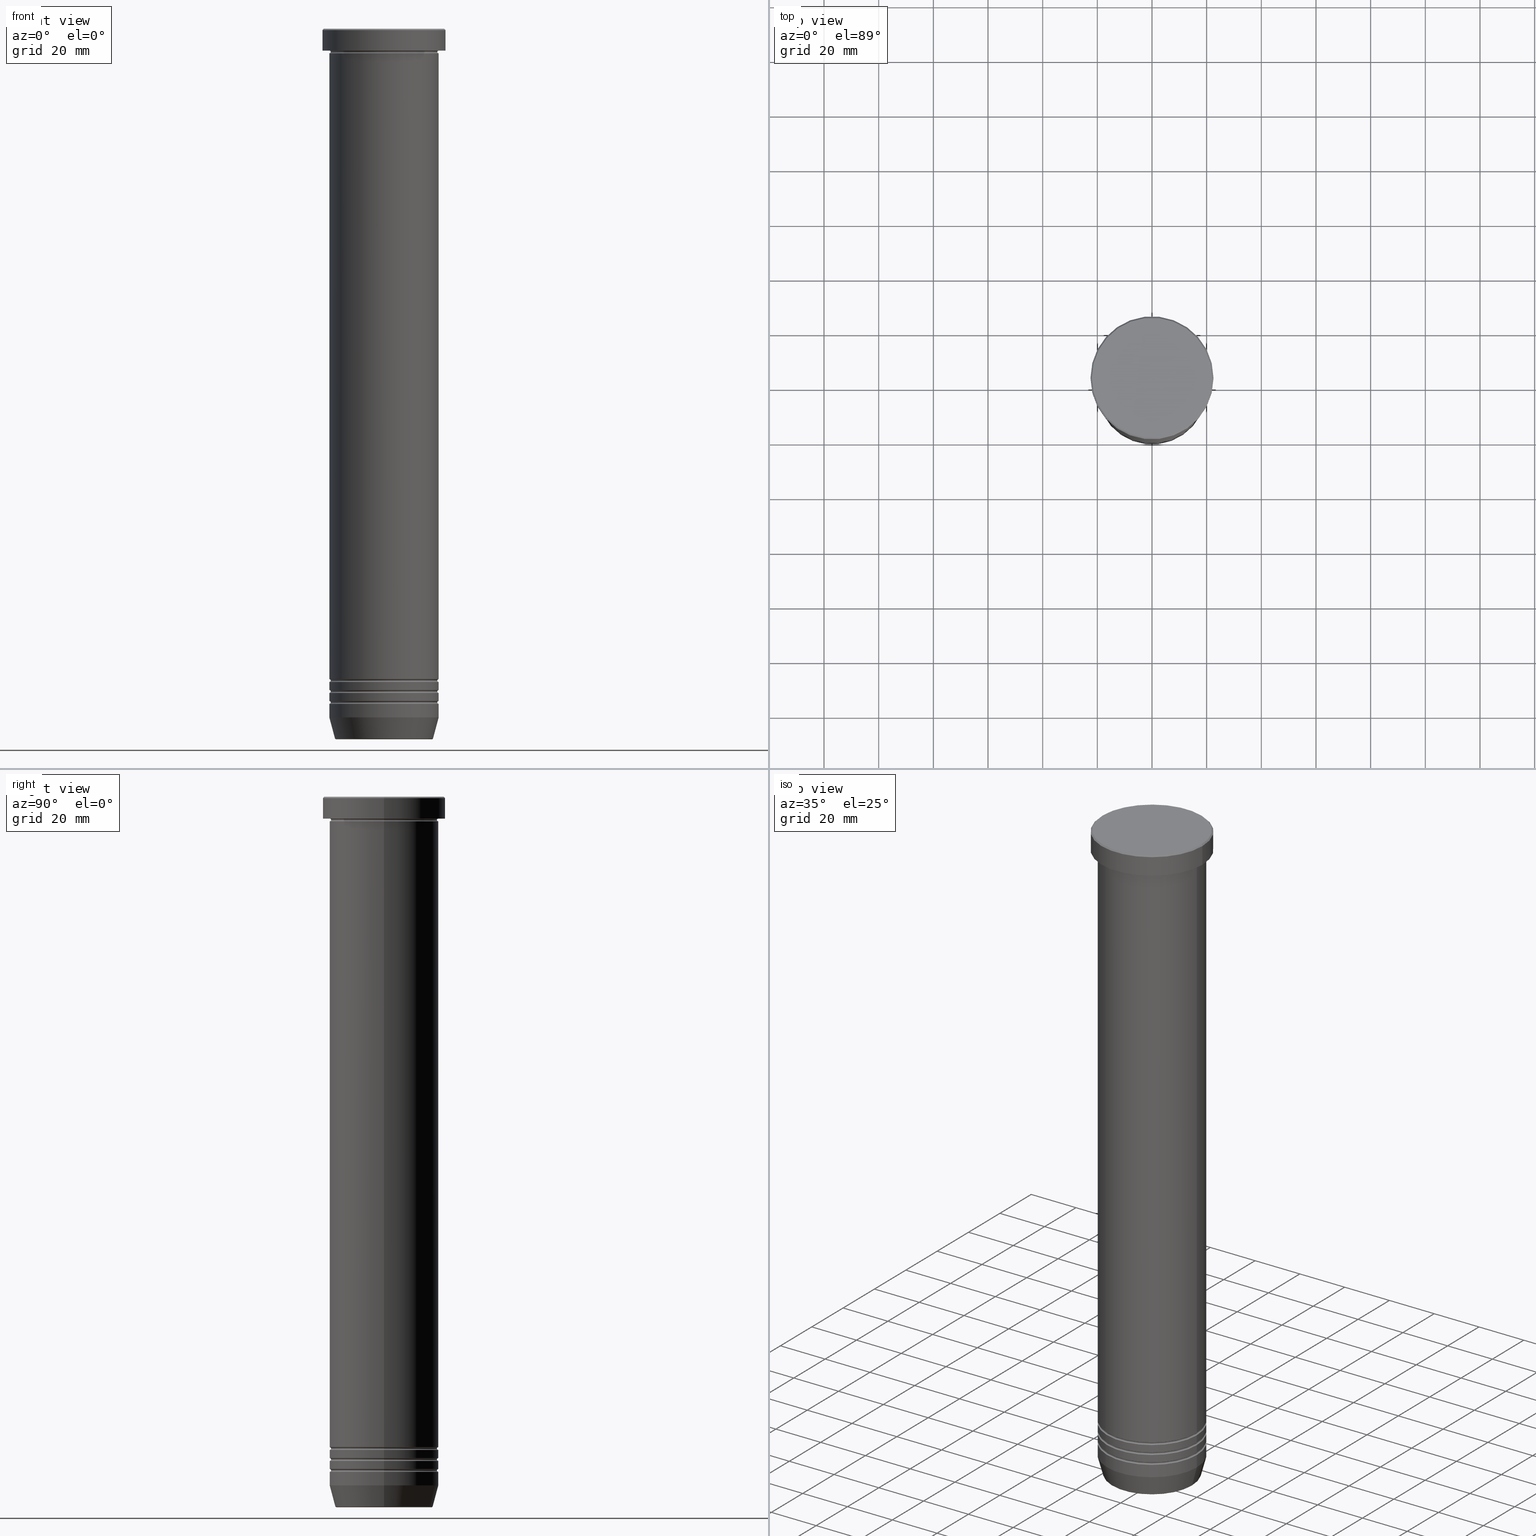
[diagram: canonical four-view strip — front | top / right | iso, engineering-drawing reading convention]
A machine part, canonical four-view strip (front | top / right | iso — engineering-drawing reading convention). The complete STEP part file that produces these views, byte-faithful:
ISO-10303-21;
HEADER;
FILE_DESCRIPTION (( 'STEP AP203' ),
    '1' );
FILE_NAME ('c0b8.STEP',
    '2024-01-02T18:50:07',
    ( '' ),
    ( '' ),
    'SwSTEP 2.0',
    'SolidWorks 2019',
    '' );
FILE_SCHEMA (( 'CONFIG_CONTROL_DESIGN' ));
ENDSEC;

DATA;
#1 = PERSON_AND_ORGANIZATION ( #694, #830 ) ;
#2 = CIRCLE ( 'NONE', #699, 19.99999999999999645 ) ;
#3 = AXIS2_PLACEMENT_3D ( 'NONE', #546, #39, #617 ) ;
#4 = AXIS2_PLACEMENT_3D ( 'NONE', #283, #744, #605 ) ;
#5 = CIRCLE ( 'NONE', #158, 0.5000000000000004441 ) ;
#6 = EDGE_LOOP ( 'NONE', ( #1048, #175, #208, #497 ) ) ;
#7 = ADVANCED_FACE ( 'NONE', ( #745 ), #593, .T. ) ;
#8 = FACE_OUTER_BOUND ( 'NONE', #637, .T. ) ;
#9 = ORIENTED_EDGE ( 'NONE', *, *, #1026, .F. ) ;
#10 = DIRECTION ( 'NONE',  ( -1.000000000000000000, 1.224646799147349509E-16, 0.000000000000000000 ) ) ;
#11 = EDGE_CURVE ( 'NONE', #399, #352, #525, .T. ) ;
#12 = ORIENTED_EDGE ( 'NONE', *, *, #331, .T. ) ;
#13 = ORIENTED_EDGE ( 'NONE', *, *, #621, .T. ) ;
#14 = DIRECTION ( 'NONE',  ( -1.000000000000000000, 0.000000000000000000, 0.000000000000000000 ) ) ;
#15 = CARTESIAN_POINT ( 'NONE',  ( 0.000000000000000000, 0.000000000000000000, 0.000000000000000000 ) ) ;
#16 = CARTESIAN_POINT ( 'NONE',  ( 0.000000000000000000, 0.000000000000000000, -54.99999999999999289 ) ) ;
#17 = CLOSED_SHELL ( 'NONE', ( #570, #246, #369, #888, #584, #613, #782, #674, #151, #842, #103, #26, #630, #880, #386, #951, #319, #1009, #238, #661, #818, #1047, #83, #736, #57, #753 ) ) ;
#18 = FACE_OUTER_BOUND ( 'NONE', #85, .T. ) ;
#19 = AXIS2_PLACEMENT_3D ( 'NONE', #486, #886, #814 ) ;
#20 = TOROIDAL_SURFACE ( 'NONE', #856, 19.99999999999999645, 0.5000000000000000000 ) ;
#21 = ORIENTED_EDGE ( 'NONE', *, *, #519, .T. ) ;
#22 = DIRECTION ( 'NONE',  ( -0.000000000000000000, -0.000000000000000000, 1.000000000000000000 ) ) ;
#23 = CARTESIAN_POINT ( 'NONE',  ( 0.000000000000000000, 0.000000000000000000, 0.000000000000000000 ) ) ;
#24 = FACE_OUTER_BOUND ( 'NONE', #90, .T. ) ;
#25 = ORIENTED_EDGE ( 'NONE', *, *, #418, .F. ) ;
#26 = ADVANCED_FACE ( 'NONE', ( #778 ), #609, .T. ) ;
#27 = DIRECTION ( 'NONE',  ( -1.000000000000000000, 1.224646799147349509E-16, 0.000000000000000000 ) ) ;
#28 = CALENDAR_DATE ( 2024, 2, 1 ) ;
#29 = CARTESIAN_POINT ( 'NONE',  ( 19.99999999999999645, 0.000000000000000000, -238.5000000000000000 ) ) ;
#30 = DIRECTION ( 'NONE',  ( -1.000000000000000000, 1.224646799147349509E-16, 0.000000000000000000 ) ) ;
#31 = DIRECTION ( 'NONE',  ( 1.000000000000000000, 0.000000000000000000, 0.000000000000000000 ) ) ;
#32 = EDGE_LOOP ( 'NONE', ( #1056, #751, #472, #252 ) ) ;
#33 = CARTESIAN_POINT ( 'NONE',  ( 20.00000000000000000, 0.000000000000000000, -54.99999999999999289 ) ) ;
#34 = EDGE_CURVE ( 'NONE', #741, #974, #498, .T. ) ;
#35 = PERSON_AND_ORGANIZATION ( #694, #830 ) ;
#36 = DIRECTION ( 'NONE',  ( -0.000000000000000000, -0.000000000000000000, 1.000000000000000000 ) ) ;
#37 = ORIENTED_EDGE ( 'NONE', *, *, #1028, .F. ) ;
#38 = CIRCLE ( 'NONE', #422, 0.5000000000000004441 ) ;
#39 = DIRECTION ( 'NONE',  ( 0.000000000000000000, 0.000000000000000000, -1.000000000000000000 ) ) ;
#40 = AXIS2_PLACEMENT_3D ( 'NONE', #277, #109, #206 ) ;
#41 = TOROIDAL_SURFACE ( 'NONE', #259, 17.47274296656153325, 0.5000000000000000000 ) ;
#42 = EDGE_CURVE ( 'NONE', #102, #348, #536, .T. ) ;
#43 = APPROVAL_STATUS ( 'not_yet_approved' ) ;
#44 = CIRCLE ( 'NONE', #225, 0.5000000000000004441 ) ;
#45 = CARTESIAN_POINT ( 'NONE',  ( 0.000000000000000000, 0.000000000000000000, -54.99999999999999289 ) ) ;
#46 = EDGE_CURVE ( 'NONE', #143, #413, #38, .T. ) ;
#47 = FACE_OUTER_BOUND ( 'NONE', #74, .T. ) ;
#48 = ORIENTED_EDGE ( 'NONE', *, *, #231, .F. ) ;
#49 = DIRECTION ( 'NONE',  ( 1.000000000000000000, 0.000000000000000000, 0.000000000000000000 ) ) ;
#50 = CARTESIAN_POINT ( 'NONE',  ( -21.99999999999998579, 0.000000000000000000, 0.000000000000000000 ) ) ;
#51 = DIRECTION ( 'NONE',  ( 1.000000000000000000, 0.000000000000000000, 0.000000000000000000 ) ) ;
#52 = CARTESIAN_POINT ( 'NONE',  ( 0.000000000000000000, 0.000000000000000000, -246.0000000000000000 ) ) ;
#53 = ORIENTED_EDGE ( 'NONE', *, *, #384, .T. ) ;
#54 = FACE_OUTER_BOUND ( 'NONE', #994, .T. ) ;
#55 = CARTESIAN_POINT ( 'NONE',  ( 0.000000000000000000, 0.000000000000000000, -259.9999999999999432 ) ) ;
#56 = CARTESIAN_POINT ( 'NONE',  ( -19.99999999999999645, 2.449293598294706119E-15, 0.000000000000000000 ) ) ;
#57 = ADVANCED_FACE ( 'NONE', ( #121 ), #950, .F. ) ;
#58 = DIRECTION ( 'NONE',  ( -1.000000000000000000, 0.000000000000000000, 0.000000000000000000 ) ) ;
#59 = AXIS2_PLACEMENT_3D ( 'NONE', #696, #975, #323 ) ;
#60 = VERTEX_POINT ( 'NONE', #629 ) ;
#61 = TOROIDAL_SURFACE ( 'NONE', #550, 19.99999999999999645, 0.5000000000000000000 ) ;
#62 = DIRECTION ( 'NONE',  ( -0.000000000000000000, -0.000000000000000000, 1.000000000000000000 ) ) ;
#63 = AXIS2_PLACEMENT_3D ( 'NONE', #266, #843, #14 ) ;
#64 = CARTESIAN_POINT ( 'NONE',  ( -17.95570587970606269, 2.324116685748020582E-15, -259.6294095225512137 ) ) ;
#65 = CARTESIAN_POINT ( 'NONE',  ( 0.000000000000000000, 0.000000000000000000, 0.000000000000000000 ) ) ;
#66 = EDGE_LOOP ( 'NONE', ( #552, #596, #444, #692 ) ) ;
#67 = DIRECTION ( 'NONE',  ( 0.000000000000000000, 0.000000000000000000, -1.000000000000000000 ) ) ;
#68 = VERTEX_POINT ( 'NONE', #864 ) ;
#69 = EDGE_CURVE ( 'NONE', #974, #675, #763, .T. ) ;
#70 = PLANE ( 'NONE',  #527 ) ;
#71 = DIRECTION ( 'NONE',  ( -0.000000000000000000, -0.000000000000000000, 1.000000000000000000 ) ) ;
#72 = VERTEX_POINT ( 'NONE', #775 ) ;
#73 = DIRECTION ( 'NONE',  ( 0.000000000000000000, 0.000000000000000000, -1.000000000000000000 ) ) ;
#74 = EDGE_LOOP ( 'NONE', ( #250, #557, #436, #168 ) ) ;
#75 = DIRECTION ( 'NONE',  ( -0.7071067811865426878, 0.000000000000000000, -0.7071067811865524577 ) ) ;
#76 = ORIENTED_EDGE ( 'NONE', *, *, #342, .F. ) ;
#77 = DIRECTION ( 'NONE',  ( -0.000000000000000000, -0.000000000000000000, 1.000000000000000000 ) ) ;
#78 = ORIENTED_EDGE ( 'NONE', *, *, #860, .F. ) ;
#79 = AXIS2_PLACEMENT_3D ( 'NONE', #380, #862, #1002 ) ;
#80 = APPROVAL ( #912, 'NEUR�EN�' ) ;
#81 = AXIS2_PLACEMENT_3D ( 'NONE', #140, #382, #798 ) ;
#82 = CONICAL_SURFACE ( 'NONE', #240, 17.85640646055101399, 0.2617993877991499629 ) ;
#83 = ADVANCED_FACE ( 'NONE', ( #24 ), #781, .F. ) ;
#84 = VECTOR ( 'NONE', #566, 1000.000000000000000 ) ;
#85 = EDGE_LOOP ( 'NONE', ( #869, #779, #265, #285 ) ) ;
#86 = CARTESIAN_POINT ( 'NONE',  ( 20.00000000000000000, 0.000000000000000000, -239.0000000000000000 ) ) ;
#87 = ORIENTED_EDGE ( 'NONE', *, *, #1058, .T. ) ;
#88 = DIRECTION ( 'NONE',  ( -0.000000000000000000, -0.000000000000000000, 1.000000000000000000 ) ) ;
#89 = VERTEX_POINT ( 'NONE', #614 ) ;
#90 = EDGE_LOOP ( 'NONE', ( #234, #450, #564, #580 ) ) ;
#91 = EDGE_CURVE ( 'NONE', #1006, #823, #932, .T. ) ;
#92 = ORIENTED_EDGE ( 'NONE', *, *, #287, .T. ) ;
#93 = DIRECTION ( 'NONE',  ( 1.000000000000000000, 0.000000000000000000, 0.000000000000000000 ) ) ;
#94 = CIRCLE ( 'NONE', #221, 22.50000000000000000 ) ;
#95 = ORIENTED_EDGE ( 'NONE', *, *, #451, .F. ) ;
#96 = TOROIDAL_SURFACE ( 'NONE', #4, 19.99999999999999645, 0.5000000000000000000 ) ;
#97 = AXIS2_PLACEMENT_3D ( 'NONE', #754, #424, #432 ) ;
#98 = ORIENTED_EDGE ( 'NONE', *, *, #915, .F. ) ;
#99 = EDGE_CURVE ( 'NONE', #68, #741, #127, .T. ) ;
#100 = PERSON_AND_ORGANIZATION ( #694, #830 ) ;
#101 = ORIENTED_EDGE ( 'NONE', *, *, #34, .T. ) ;
#102 = VERTEX_POINT ( 'NONE', #366 ) ;
#103 = ADVANCED_FACE ( 'NONE', ( #435 ), #937, .T. ) ;
#104 = FACE_OUTER_BOUND ( 'NONE', #6, .T. ) ;
#105 = FACE_OUTER_BOUND ( 'NONE', #832, .T. ) ;
#106 = ORIENTED_EDGE ( 'NONE', *, *, #404, .F. ) ;
#107 = ORIENTED_EDGE ( 'NONE', *, *, #69, .F. ) ;
#108 = FACE_OUTER_BOUND ( 'NONE', #340, .T. ) ;
#109 = DIRECTION ( 'NONE',  ( 0.000000000000000000, -1.000000000000000000, 0.000000000000000000 ) ) ;
#110 = CARTESIAN_POINT ( 'NONE',  ( 0.000000000000000000, 0.000000000000000000, -251.9999999999999432 ) ) ;
#111 = VECTOR ( 'NONE', #389, 1000.000000000000114 ) ;
#112 = DIRECTION ( 'NONE',  ( -0.000000000000000000, -0.000000000000000000, 1.000000000000000000 ) ) ;
#113 = ADVANCED_FACE ( 'NONE', ( #18 ), #284, .T. ) ;
#114 = CIRCLE ( 'NONE', #79, 19.49999999999999645 ) ;
#115 = CIRCLE ( 'NONE', #918, 0.5000000000000004441 ) ;
#116 = EDGE_LOOP ( 'NONE', ( #664, #841, #686, #330 ) ) ;
#117 = TOROIDAL_SURFACE ( 'NONE', #63, 19.99999999999999645, 0.5000000000000000000 ) ;
#118 = DIRECTION ( 'NONE',  ( -0.000000000000000000, -1.000000000000000000, -0.000000000000000000 ) ) ;
#119 = PRODUCT ( 'c0b8', 'c0b8', '', ( #269 ) ) ;
#120 = CARTESIAN_POINT ( 'NONE',  ( -19.99999999999999645, 2.449293598294706119E-15, -238.5000000000000000 ) ) ;
#121 = FACE_OUTER_BOUND ( 'NONE', #804, .T. ) ;
#122 = EDGE_CURVE ( 'NONE', #89, #865, #437, .T. ) ;
#123 = ORIENTED_EDGE ( 'NONE', *, *, #915, .T. ) ;
#124 = CARTESIAN_POINT ( 'NONE',  ( -19.99999999999999645, 2.449293598294706119E-15, -246.5000000000000000 ) ) ;
#125 = DIRECTION ( 'NONE',  ( -0.000000000000000000, -0.000000000000000000, 1.000000000000000000 ) ) ;
#126 = CARTESIAN_POINT ( 'NONE',  ( 0.000000000000000000, 0.000000000000000000, -8.500000000000000000 ) ) ;
#127 = LINE ( 'NONE', #770, #568 ) ;
#128 = ORIENTED_EDGE ( 'NONE', *, *, #190, .F. ) ;
#129 = EDGE_CURVE ( 'NONE', #348, #823, #806, .T. ) ;
#130 = DIRECTION ( 'NONE',  ( -1.000000000000000000, -1.224646799147349509E-16, 0.000000000000000000 ) ) ;
#131 = DIRECTION ( 'NONE',  ( 1.000000000000000000, 0.000000000000000000, 0.000000000000000000 ) ) ;
#132 = ORIENTED_EDGE ( 'NONE', *, *, #197, .T. ) ;
#133 = AXIS2_PLACEMENT_3D ( 'NONE', #237, #317, #794 ) ;
#134 = CARTESIAN_POINT ( 'NONE',  ( -20.00000000000000000, 0.000000000000000000, -8.000000000000000000 ) ) ;
#135 = CIRCLE ( 'NONE', #461, 0.5000000000000004441 ) ;
#136 = AXIS2_PLACEMENT_3D ( 'NONE', #311, #579, #482 ) ;
#137 = SECURITY_CLASSIFICATION_LEVEL ( 'unclassified' ) ;
#138 = CC_DESIGN_APPROVAL ( #1055, ( #292 ) ) ;
#139 = ADVANCED_FACE ( 'NONE', ( #652 ), #1032, .T. ) ;
#140 = CARTESIAN_POINT ( 'NONE',  ( 0.000000000000000000, 0.000000000000000000, -238.0000000000000000 ) ) ;
#141 = CARTESIAN_POINT ( 'NONE',  ( -19.99999999999999289, 2.449293598294705724E-15, -238.0000000000000000 ) ) ;
#142 = CARTESIAN_POINT ( 'NONE',  ( 19.49999999999999645, 0.000000000000000000, -242.5000000000000000 ) ) ;
#143 = VERTEX_POINT ( 'NONE', #242 ) ;
#144 = DIRECTION ( 'NONE',  ( 0.000000000000000000, 0.000000000000000000, -1.000000000000000000 ) ) ;
#145 = CALENDAR_DATE ( 2024, 2, 1 ) ;
#146 = DIRECTION ( 'NONE',  ( 1.000000000000000000, 0.000000000000000000, 0.000000000000000000 ) ) ;
#147 = DIRECTION ( 'NONE',  ( 0.000000000000000000, 0.000000000000000000, -1.000000000000000000 ) ) ;
#148 = ORIENTED_EDGE ( 'NONE', *, *, #992, .F. ) ;
#149 = DIRECTION ( 'NONE',  ( 1.000000000000000000, 0.000000000000000000, 0.000000000000000000 ) ) ;
#150 = CARTESIAN_POINT ( 'NONE',  ( 0.000000000000000000, 0.000000000000000000, 0.000000000000000000 ) ) ;
#151 = ADVANCED_FACE ( 'NONE', ( #577 ), #556, .T. ) ;
#152 = DIRECTION ( 'NONE',  ( -1.000000000000000000, 0.000000000000000000, 0.000000000000000000 ) ) ;
#153 = AXIS2_PLACEMENT_3D ( 'NONE', #623, #200, #460 ) ;
#154 = ORIENTED_EDGE ( 'NONE', *, *, #165, .F. ) ;
#155 = TOROIDAL_SURFACE ( 'NONE', #325, 20.00000000000000000, 0.5000000000000000000 ) ;
#156 = AXIS2_PLACEMENT_3D ( 'NONE', #16, #414, #1057 ) ;
#157 = FACE_OUTER_BOUND ( 'NONE', #582, .T. ) ;
#158 = AXIS2_PLACEMENT_3D ( 'NONE', #676, #520, #10 ) ;
#159 = ORIENTED_EDGE ( 'NONE', *, *, #595, .T. ) ;
#160 = CARTESIAN_POINT ( 'NONE',  ( 19.99999999999999645, 2.449293598294706119E-15, -238.5000000000000000 ) ) ;
#161 = DIRECTION ( 'NONE',  ( 1.000000000000000000, 0.000000000000000000, 0.000000000000000000 ) ) ;
#162 = LINE ( 'NONE', #1037, #618 ) ;
#163 = DIRECTION ( 'NONE',  ( 0.000000000000000000, 0.000000000000000000, -1.000000000000000000 ) ) ;
#164 = EDGE_CURVE ( 'NONE', #724, #68, #2, .T. ) ;
#165 = EDGE_CURVE ( 'NONE', #375, #399, #581, .T. ) ;
#166 = ORIENTED_EDGE ( 'NONE', *, *, #46, .T. ) ;
#167 = DIRECTION ( 'NONE',  ( -0.000000000000000000, -0.000000000000000000, 1.000000000000000000 ) ) ;
#168 = ORIENTED_EDGE ( 'NONE', *, *, #302, .F. ) ;
#169 = AXIS2_PLACEMENT_3D ( 'NONE', #1025, #112, #1020 ) ;
#170 = ORIENTED_EDGE ( 'NONE', *, *, #687, .F. ) ;
#171 = DIRECTION ( 'NONE',  ( 0.000000000000000000, 0.000000000000000000, -1.000000000000000000 ) ) ;
#172 = ORIENTED_EDGE ( 'NONE', *, *, #11, .T. ) ;
#173 = EDGE_CURVE ( 'NONE', #976, #416, #567, .T. ) ;
#174 = CARTESIAN_POINT ( 'NONE',  ( 0.000000000000000000, 0.000000000000000000, 0.000000000000000000 ) ) ;
#175 = ORIENTED_EDGE ( 'NONE', *, *, #378, .T. ) ;
#176 = DATE_AND_TIME ( #263, #787 ) ;
#177 = UNCERTAINTY_MEASURE_WITH_UNIT (LENGTH_MEASURE( 1.000000000000000082E-05 ), #673, 'distance_accuracy_value', 'NONE');
#178 = EDGE_CURVE ( 'NONE', #891, #463, #383, .T. ) ;
#179 = EDGE_LOOP ( 'NONE', ( #267, #394, #541, #911 ) ) ;
#180 = APPLICATION_PROTOCOL_DEFINITION ( 'international standard', 'config_control_design', 1994, #412 ) ;
#181 = AXIS2_PLACEMENT_3D ( 'NONE', #207, #362, #760 ) ;
#182 = VECTOR ( 'NONE', #518, 1000.000000000000000 ) ;
#183 = ORIENTED_EDGE ( 'NONE', *, *, #42, .F. ) ;
#184 = AXIS2_PLACEMENT_3D ( 'NONE', #774, #171, #684 ) ;
#185 = APPROVAL_PERSON_ORGANIZATION ( #1, #80, #344 ) ;
#186 = ORIENTED_EDGE ( 'NONE', *, *, #726, .F. ) ;
#187 = ORIENTED_EDGE ( 'NONE', *, *, #256, .F. ) ;
#188 = CARTESIAN_POINT ( 'NONE',  ( 19.99999999999999289, 0.000000000000000000, -238.0000000000000000 ) ) ;
#189 = EDGE_CURVE ( 'NONE', #416, #89, #162, .T. ) ;
#190 = EDGE_CURVE ( 'NONE', #484, #413, #990, .T. ) ;
#191 = DIRECTION ( 'NONE',  ( 1.000000000000000000, 0.000000000000000000, 0.000000000000000000 ) ) ;
#192 = CARTESIAN_POINT ( 'NONE',  ( 0.000000000000000000, 0.000000000000000000, -54.99999999999999289 ) ) ;
#193 = DIRECTION ( 'NONE',  ( 0.000000000000000000, 0.000000000000000000, -1.000000000000000000 ) ) ;
#194 = VERTEX_POINT ( 'NONE', #232 ) ;
#195 = CARTESIAN_POINT ( 'NONE',  ( 0.000000000000000000, 0.000000000000000000, -9.000000000000001776 ) ) ;
#196 = DIRECTION ( 'NONE',  ( 0.000000000000000000, 0.000000000000000000, -1.000000000000000000 ) ) ;
#197 = EDGE_CURVE ( 'NONE', #348, #89, #255, .T. ) ;
#198 = DIRECTION ( 'NONE',  ( 1.000000000000000000, 0.000000000000000000, 0.000000000000000000 ) ) ;
#199 = AXIS2_PLACEMENT_3D ( 'NONE', #875, #36, #372 ) ;
#200 = DIRECTION ( 'NONE',  ( 0.000000000000000000, -1.000000000000000000, 0.000000000000000000 ) ) ;
#201 = CIRCLE ( 'NONE', #934, 0.5000000000000004441 ) ;
#202 = CIRCLE ( 'NONE', #156, 20.00000000000000000 ) ;
#203 = ORIENTED_EDGE ( 'NONE', *, *, #1001, .T. ) ;
#204 = CARTESIAN_POINT ( 'NONE',  ( 22.50000000000000000, 0.000000000000000000, 0.000000000000000000 ) ) ;
#205 = DATE_AND_TIME ( #145, #1053 ) ;
#206 = DIRECTION ( 'NONE',  ( 0.000000000000000000, 0.000000000000000000, -1.000000000000000000 ) ) ;
#207 = CARTESIAN_POINT ( 'NONE',  ( 0.000000000000000000, 0.000000000000000000, 0.000000000000000000 ) ) ;
#208 = ORIENTED_EDGE ( 'NONE', *, *, #677, .T. ) ;
#209 = CARTESIAN_POINT ( 'NONE',  ( 17.47274296656153325, 0.000000000000000000, -259.4999999999999432 ) ) ;
#210 = COORDINATED_UNIVERSAL_TIME_OFFSET ( 1, 0, .AHEAD. ) ;
#211 = CARTESIAN_POINT ( 'NONE',  ( 0.000000000000000000, 0.000000000000000000, -54.99999999999999289 ) ) ;
#212 = DIRECTION ( 'NONE',  ( 0.000000000000000000, 0.000000000000000000, -1.000000000000000000 ) ) ;
#213 = VERTEX_POINT ( 'NONE', #142 ) ;
#214 = EDGE_CURVE ( 'NONE', #1006, #506, #853, .T. ) ;
#215 = CARTESIAN_POINT ( 'NONE',  ( 19.99999999999999645, 2.449293598294706119E-15, -242.5000000000000000 ) ) ;
#216 = CARTESIAN_POINT ( 'NONE',  ( -20.00000000000000000, 2.449293598294706513E-15, -251.9999999999999432 ) ) ;
#217 = DIRECTION ( 'NONE',  ( -0.000000000000000000, -0.000000000000000000, 1.000000000000000000 ) ) ;
#218 = DIRECTION ( 'NONE',  ( -0.000000000000000000, -0.000000000000000000, 1.000000000000000000 ) ) ;
#219 = AXIS2_PLACEMENT_3D ( 'NONE', #15, #1010, #539 ) ;
#220 = ORIENTED_EDGE ( 'NONE', *, *, #42, .T. ) ;
#221 = AXIS2_PLACEMENT_3D ( 'NONE', #924, #196, #191 ) ;
#222 = DIRECTION ( 'NONE',  ( 1.000000000000000000, 0.000000000000000000, 0.000000000000000000 ) ) ;
#223 = AXIS2_PLACEMENT_3D ( 'NONE', #499, #271, #663 ) ;
#224 = CIRCLE ( 'NONE', #642, 19.49999999999999645 ) ;
#225 = AXIS2_PLACEMENT_3D ( 'NONE', #353, #689, #347 ) ;
#226 = CARTESIAN_POINT ( 'NONE',  ( 0.000000000000000000, 0.000000000000000000, -8.500000000000000000 ) ) ;
#227 = DIRECTION ( 'NONE',  ( -1.000000000000000000, 0.000000000000000000, 0.000000000000000000 ) ) ;
#228 = DIRECTION ( 'NONE',  ( 0.000000000000000000, 0.000000000000000000, -1.000000000000000000 ) ) ;
#229 = FACE_OUTER_BOUND ( 'NONE', #308, .T. ) ;
#230 = DIRECTION ( 'NONE',  ( -1.000000000000000000, 0.000000000000000000, 0.000000000000000000 ) ) ;
#231 = EDGE_CURVE ( 'NONE', #537, #891, #547, .T. ) ;
#232 = CARTESIAN_POINT ( 'NONE',  ( -22.50000000000000000, 2.755455298081544778E-15, -7.999999999999998224 ) ) ;
#233 = CARTESIAN_POINT ( 'NONE',  ( 0.000000000000000000, 0.000000000000000000, 0.000000000000000000 ) ) ;
#234 = ORIENTED_EDGE ( 'NONE', *, *, #494, .F. ) ;
#235 = FACE_OUTER_BOUND ( 'NONE', #980, .T. ) ;
#236 = CARTESIAN_POINT ( 'NONE',  ( -19.99999999999999645, 2.449293598294706119E-15, 0.000000000000000000 ) ) ;
#237 = CARTESIAN_POINT ( 'NONE',  ( 0.000000000000000000, 0.000000000000000000, -8.000000000000000000 ) ) ;
#238 = ADVANCED_FACE ( 'NONE', ( #370 ), #515, .T. ) ;
#239 = CYLINDRICAL_SURFACE ( 'NONE', #326, 19.99999999999999645 ) ;
#240 = AXIS2_PLACEMENT_3D ( 'NONE', #441, #88, #516 ) ;
#241 = AXIS2_PLACEMENT_3D ( 'NONE', #126, #955, #227 ) ;
#242 = CARTESIAN_POINT ( 'NONE',  ( 19.50000000000000000, 0.000000000000000000, -8.500000000000000000 ) ) ;
#243 = EDGE_CURVE ( 'NONE', #143, #562, #679, .T. ) ;
#244 = PRODUCT_DEFINITION_SHAPE ( 'NONE', 'NONE',  #700 ) ;
#245 = DIRECTION ( 'NONE',  ( -0.000000000000000000, -0.000000000000000000, 1.000000000000000000 ) ) ;
#246 = ADVANCED_FACE ( 'NONE', ( #768 ), #825, .F. ) ;
#247 = EDGE_LOOP ( 'NONE', ( #333, #931, #643, #795 ) ) ;
#248 = DIRECTION ( 'NONE',  ( 1.000000000000000000, 0.000000000000000000, 0.000000000000000000 ) ) ;
#249 = DIRECTION ( 'NONE',  ( 1.000000000000000000, 0.000000000000000000, 0.000000000000000000 ) ) ;
#250 = ORIENTED_EDGE ( 'NONE', *, *, #164, .F. ) ;
#251 = CARTESIAN_POINT ( 'NONE',  ( 0.000000000000000000, 0.000000000000000000, 0.000000000000000000 ) ) ;
#252 = ORIENTED_EDGE ( 'NONE', *, *, #819, .F. ) ;
#253 = VERTEX_POINT ( 'NONE', #447 ) ;
#254 = DIRECTION ( 'NONE',  ( 1.000000000000000000, 0.000000000000000000, 0.000000000000000000 ) ) ;
#255 = CIRCLE ( 'NONE', #837, 20.00000000000000000 ) ;
#256 = EDGE_CURVE ( 'NONE', #102, #416, #343, .T. ) ;
#257 = CIRCLE ( 'NONE', #681, 20.00000000000000000 ) ;
#258 = MANIFOLD_SOLID_BREP ( 'Zkosen�1', #749 ) ;
#259 = AXIS2_PLACEMENT_3D ( 'NONE', #649, #392, #554 ) ;
#260 = CC_DESIGN_APPROVAL ( #310, ( #358 ) ) ;
#261 = ORIENTED_EDGE ( 'NONE', *, *, #164, .T. ) ;
#262 = ORIENTED_EDGE ( 'NONE', *, *, #129, .T. ) ;
#263 = CALENDAR_DATE ( 2024, 2, 1 ) ;
#264 = EDGE_CURVE ( 'NONE', #506, #987, #1003, .T. ) ;
#265 = ORIENTED_EDGE ( 'NONE', *, *, #451, .T. ) ;
#266 = CARTESIAN_POINT ( 'NONE',  ( 0.000000000000000000, 0.000000000000000000, -246.5000000000000000 ) ) ;
#267 = ORIENTED_EDGE ( 'NONE', *, *, #532, .F. ) ;
#268 = ORIENTED_EDGE ( 'NONE', *, *, #909, .T. ) ;
#269 = MECHANICAL_CONTEXT ( 'NONE', #412, 'mechanical' ) ;
#270 = AXIS2_PLACEMENT_3D ( 'NONE', #124, #633, #27 ) ;
#271 = DIRECTION ( 'NONE',  ( 0.000000000000000000, 0.000000000000000000, -1.000000000000000000 ) ) ;
#272 = AXIS2_PLACEMENT_3D ( 'NONE', #321, #67, #222 ) ;
#273 = CC_DESIGN_DATE_AND_TIME_ASSIGNMENT ( #619, #474, ( #700 ) ) ;
#274 = AXIS2_PLACEMENT_3D ( 'NONE', #470, #217, #695 ) ;
#275 = EDGE_LOOP ( 'NONE', ( #106, #817, #480, #914 ) ) ;
#276 = EDGE_CURVE ( 'NONE', #352, #399, #94, .T. ) ;
#277 = CARTESIAN_POINT ( 'NONE',  ( 20.00000000000000000, 0.000000000000000000, -8.500000000000000000 ) ) ;
#278 = FACE_OUTER_BOUND ( 'NONE', #247, .T. ) ;
#279 = CARTESIAN_POINT ( 'NONE',  ( 20.00000000000000000, 2.449293598294706513E-15, -8.500000000000000000 ) ) ;
#280 = EDGE_LOOP ( 'NONE', ( #939, #101, #586, #1061 ) ) ;
#281 = LINE ( 'NONE', #638, #738 ) ;
#282 = DIRECTION ( 'NONE',  ( -0.000000000000000000, -0.000000000000000000, 1.000000000000000000 ) ) ;
#283 = CARTESIAN_POINT ( 'NONE',  ( 0.000000000000000000, 0.000000000000000000, -238.5000000000000000 ) ) ;
#284 = CYLINDRICAL_SURFACE ( 'NONE', #59, 22.50000000000000000 ) ;
#285 = ORIENTED_EDGE ( 'NONE', *, *, #276, .T. ) ;
#286 = CARTESIAN_POINT ( 'NONE',  ( 0.000000000000000000, 0.000000000000000000, -246.5000000000000000 ) ) ;
#287 = EDGE_CURVE ( 'NONE', #68, #724, #872, .T. ) ;
#288 = DIRECTION ( 'NONE',  ( -0.000000000000000000, -0.000000000000000000, 1.000000000000000000 ) ) ;
#289 = CIRCLE ( 'NONE', #1050, 0.5000000000000004441 ) ;
#290 = AXIS2_PLACEMENT_3D ( 'NONE', #324, #654, #398 ) ;
#291 = ORIENTED_EDGE ( 'NONE', *, *, #430, .T. ) ;
#292 = SECURITY_CLASSIFICATION ( '', '', #137 ) ;
#293 = PERSON_AND_ORGANIZATION_ROLE ( 'creator' ) ;
#294 = FACE_OUTER_BOUND ( 'NONE', #776, .T. ) ;
#295 = DIRECTION ( 'NONE',  ( -0.000000000000000000, -0.000000000000000000, 1.000000000000000000 ) ) ;
#296 = DIRECTION ( 'NONE',  ( -1.000000000000000000, -1.224646799147349509E-16, 0.000000000000000000 ) ) ;
#297 = EDGE_CURVE ( 'NONE', #987, #253, #257, .T. ) ;
#298 = ORIENTED_EDGE ( 'NONE', *, *, #514, .F. ) ;
#299 = FACE_OUTER_BOUND ( 'NONE', #757, .T. ) ;
#300 = APPROVAL_DATE_TIME ( #205, #310 ) ;
#301 = CARTESIAN_POINT ( 'NONE',  ( 20.00000000000000000, 2.449293598294706513E-15, -8.000000000000000000 ) ) ;
#302 = EDGE_CURVE ( 'NONE', #68, #213, #952, .T. ) ;
#303 = ORIENTED_EDGE ( 'NONE', *, *, #670, .F. ) ;
#304 = DIRECTION ( 'NONE',  ( 1.000000000000000000, 0.000000000000000000, 0.000000000000000000 ) ) ;
#305 = PERSON_AND_ORGANIZATION_ROLE ( 'classification_officer' ) ;
#306 = CARTESIAN_POINT ( 'NONE',  ( -22.50000000000000000, 2.755455298081544778E-15, -0.5000000000000212053 ) ) ;
#307 = AXIS2_PLACEMENT_3D ( 'NONE', #943, #357, #212 ) ;
#308 = EDGE_LOOP ( 'NONE', ( #755, #428, #771, #979 ) ) ;
#309 = CIRCLE ( 'NONE', #1033, 0.5000000000000004441 ) ;
#310 = APPROVAL ( #43, 'NEUR�EN�' ) ;
#311 = CARTESIAN_POINT ( 'NONE',  ( 0.000000000000000000, 0.000000000000000000, -246.5000000000000000 ) ) ;
#312 = AXIS2_PLACEMENT_3D ( 'NONE', #732, #77, #717 ) ;
#313 = CIRCLE ( 'NONE', #971, 21.99999999999998579 ) ;
#314 = EDGE_CURVE ( 'NONE', #537, #811, #808, .T. ) ;
#315 = CARTESIAN_POINT ( 'NONE',  ( -17.47274296656153325, 2.139793874632400777E-15, -259.4999999999999432 ) ) ;
#316 = FACE_OUTER_BOUND ( 'NONE', #883, .T. ) ;
#317 = DIRECTION ( 'NONE',  ( -0.000000000000000000, -0.000000000000000000, 1.000000000000000000 ) ) ;
#318 = ORIENTED_EDGE ( 'NONE', *, *, #46, .F. ) ;
#319 = ADVANCED_FACE ( 'NONE', ( #294 ), #627, .F. ) ;
#320 = FACE_OUTER_BOUND ( 'NONE', #66, .T. ) ;
#321 = CARTESIAN_POINT ( 'NONE',  ( 0.000000000000000000, 0.000000000000000000, -238.5000000000000000 ) ) ;
#322 = CARTESIAN_POINT ( 'NONE',  ( 0.000000000000000000, 0.000000000000000000, -242.5000000000000000 ) ) ;
#323 = DIRECTION ( 'NONE',  ( 1.000000000000000000, 0.000000000000000000, 0.000000000000000000 ) ) ;
#324 = CARTESIAN_POINT ( 'NONE',  ( 0.000000000000000000, 0.000000000000000000, -9.000000000000001776 ) ) ;
#325 = AXIS2_PLACEMENT_3D ( 'NONE', #789, #455, #49 ) ;
#326 = AXIS2_PLACEMENT_3D ( 'NONE', #233, #816, #558 ) ;
#327 = APPROVAL_PERSON_ORGANIZATION ( #790, #310, #1023 ) ;
#328 = CARTESIAN_POINT ( 'NONE',  ( -20.00000000000000000, 2.449293598294706513E-15, -239.0000000000000000 ) ) ;
#329 = DIRECTION ( 'NONE',  ( -0.000000000000000000, -0.000000000000000000, 1.000000000000000000 ) ) ;
#330 = ORIENTED_EDGE ( 'NONE', *, *, #598, .F. ) ;
#331 = EDGE_CURVE ( 'NONE', #89, #348, #667, .T. ) ;
#332 = DIRECTION ( 'NONE',  ( 0.000000000000000000, -0.000000000000000000, 1.000000000000000000 ) ) ;
#333 = ORIENTED_EDGE ( 'NONE', *, *, #479, .F. ) ;
#334 = EDGE_CURVE ( 'NONE', #506, #1006, #500, .T. ) ;
#335 = FACE_OUTER_BOUND ( 'NONE', #280, .T. ) ;
#336 = ORIENTED_EDGE ( 'NONE', *, *, #860, .T. ) ;
#337 = LINE ( 'NONE', #734, #443 ) ;
#338 = ORIENTED_EDGE ( 'NONE', *, *, #276, .F. ) ;
#339 = DIRECTION ( 'NONE',  ( 1.000000000000000000, 0.000000000000000000, 0.000000000000000000 ) ) ;
#340 = EDGE_LOOP ( 'NONE', ( #203, #491, #986, #107 ) ) ;
#341 = VECTOR ( 'NONE', #75, 1000.000000000000000 ) ;
#342 = EDGE_CURVE ( 'NONE', #656, #352, #644, .T. ) ;
#343 = CIRCLE ( 'NONE', #916, 20.00000000000000000 ) ;
#344 = APPROVAL_ROLE ( '' ) ;
#345 = CIRCLE ( 'NONE', #874, 17.95570587970606269 ) ;
#346 = VERTEX_POINT ( 'NONE', #892 ) ;
#347 = DIRECTION ( 'NONE',  ( 0.000000000000000000, 0.000000000000000000, -1.000000000000000000 ) ) ;
#348 = VERTEX_POINT ( 'NONE', #635 ) ;
#349 = ADVANCED_FACE ( 'NONE', ( #791 ), #423, .F. ) ;
#350 = EDGE_LOOP ( 'NONE', ( #1043, #616, #172, #95 ) ) ;
#351 = ADVANCED_FACE ( 'NONE', ( #475 ), #1036, .T. ) ;
#352 = VERTEX_POINT ( 'NONE', #947 ) ;
#353 = CARTESIAN_POINT ( 'NONE',  ( -19.99999999999999645, 0.000000000000000000, -242.5000000000000000 ) ) ;
#354 = AXIS2_PLACEMENT_3D ( 'NONE', #453, #784, #1024 ) ;
#355 = TOROIDAL_SURFACE ( 'NONE', #184, 20.00000000000000000, 0.5000000000000000000 ) ;
#356 = CARTESIAN_POINT ( 'NONE',  ( -17.47274296656153325, 2.169366823916867714E-15, -259.9999999999999432 ) ) ;
#357 = DIRECTION ( 'NONE',  ( -0.000000000000000000, -1.000000000000000000, -0.000000000000000000 ) ) ;
#358 = PRODUCT_DEFINITION_FORMATION_WITH_SPECIFIED_SOURCE ( 'LIBOVOLN�', '', #119, .NOT_KNOWN. ) ;
#359 = EDGE_LOOP ( 'NONE', ( #123, #336 ) ) ;
#360 = PLANE ( 'NONE',  #589 ) ;
#361 = DIRECTION ( 'NONE',  ( 1.000000000000000000, 0.000000000000000000, 0.000000000000000000 ) ) ;
#362 = DIRECTION ( 'NONE',  ( -0.000000000000000000, -0.000000000000000000, 1.000000000000000000 ) ) ;
#363 = EDGE_LOOP ( 'NONE', ( #454, #631 ) ) ;
#364 = DIRECTION ( 'NONE',  ( -1.000000000000000000, 0.000000000000000000, 0.000000000000000000 ) ) ;
#365 = DIRECTION ( 'NONE',  ( 0.000000000000000000, 0.000000000000000000, -1.000000000000000000 ) ) ;
#366 = CARTESIAN_POINT ( 'NONE',  ( 20.00000000000000000, 0.000000000000000000, -251.9999999999999432 ) ) ;
#367 = VERTEX_POINT ( 'NONE', #873 ) ;
#368 = DIRECTION ( 'NONE',  ( 0.000000000000000000, 0.000000000000000000, -1.000000000000000000 ) ) ;
#369 = ADVANCED_FACE ( 'NONE', ( #157 ), #61, .F. ) ;
#370 = FACE_OUTER_BOUND ( 'NONE', #385, .T. ) ;
#371 = AXIS2_PLACEMENT_3D ( 'NONE', #52, #715, #1031 ) ;
#372 = DIRECTION ( 'NONE',  ( 1.000000000000000000, 0.000000000000000000, 0.000000000000000000 ) ) ;
#373 = AXIS2_PLACEMENT_3D ( 'NONE', #388, #468, #954 ) ;
#374 = AXIS2_PLACEMENT_3D ( 'NONE', #904, #769, #529 ) ;
#375 = VERTEX_POINT ( 'NONE', #50 ) ;
#376 = SHAPE_DEFINITION_REPRESENTATION ( #244, #495 ) ;
#377 = DIRECTION ( 'NONE',  ( 0.000000000000000000, 0.000000000000000000, -1.000000000000000000 ) ) ;
#378 = EDGE_CURVE ( 'NONE', #891, #537, #701, .T. ) ;
#379 = ORIENTED_EDGE ( 'NONE', *, *, #178, .T. ) ;
#380 = CARTESIAN_POINT ( 'NONE',  ( 0.000000000000000000, 0.000000000000000000, -242.5000000000000000 ) ) ;
#381 = APPROVAL_DATE_TIME ( #446, #1055 ) ;
#382 = DIRECTION ( 'NONE',  ( -0.000000000000000000, -0.000000000000000000, 1.000000000000000000 ) ) ;
#383 = LINE ( 'NONE', #56, #1014 ) ;
#384 = EDGE_CURVE ( 'NONE', #847, #976, #201, .T. ) ;
#385 = EDGE_LOOP ( 'NONE', ( #148, #261, #610, #926 ) ) ;
#386 = ADVANCED_FACE ( 'NONE', ( #320 ), #438, .T. ) ;
#387 = COORDINATED_UNIVERSAL_TIME_OFFSET ( 1, 0, .AHEAD. ) ;
#388 = CARTESIAN_POINT ( 'NONE',  ( 0.000000000000000000, 0.000000000000000000, -246.0000000000000000 ) ) ;
#389 = DIRECTION ( 'NONE',  ( -0.2588190451025212391, 3.169619151431771721E-17, 0.9659258262890680902 ) ) ;
#390 = AXIS2_PLACEMENT_3D ( 'NONE', #29, #863, #365 ) ;
#391 = ADVANCED_FACE ( 'NONE', ( #235 ), #993, .T. ) ;
#392 = DIRECTION ( 'NONE',  ( -0.000000000000000000, -0.000000000000000000, 1.000000000000000000 ) ) ;
#393 = VECTOR ( 'NONE', #746, 1000.000000000000000 ) ;
#394 = ORIENTED_EDGE ( 'NONE', *, *, #792, .T. ) ;
#395 = AXIS2_PLACEMENT_3D ( 'NONE', #251, #167, #719 ) ;
#396 = DIRECTION ( 'NONE',  ( 0.000000000000000000, 0.000000000000000000, -1.000000000000000000 ) ) ;
#397 = ORIENTED_EDGE ( 'NONE', *, *, #632, .F. ) ;
#398 = DIRECTION ( 'NONE',  ( 1.000000000000000000, 0.000000000000000000, 0.000000000000000000 ) ) ;
#399 = VERTEX_POINT ( 'NONE', #306 ) ;
#400 = CC_DESIGN_PERSON_AND_ORGANIZATION_ASSIGNMENT ( #100, #833, ( #119 ) ) ;
#401 = DIRECTION ( 'NONE',  ( 0.000000000000000000, 0.000000000000000000, -1.000000000000000000 ) ) ;
#402 = LINE ( 'NONE', #236, #84 ) ;
#403 = CARTESIAN_POINT ( 'NONE',  ( 21.99999999999998579, 2.724839128102860202E-15, 0.000000000000000000 ) ) ;
#404 = EDGE_CURVE ( 'NONE', #367, #143, #765, .T. ) ;
#405 = DIRECTION ( 'NONE',  ( -0.000000000000000000, -0.000000000000000000, 1.000000000000000000 ) ) ;
#406 = ORIENTED_EDGE ( 'NONE', *, *, #189, .F. ) ;
#407 = DIRECTION ( 'NONE',  ( 1.000000000000000000, 0.000000000000000000, 0.000000000000000000 ) ) ;
#408 = AXIS2_PLACEMENT_3D ( 'NONE', #727, #730, #146 ) ;
#409 = AXIS2_PLACEMENT_3D ( 'NONE', #588, #1004, #666 ) ;
#410 = CIRCLE ( 'NONE', #996, 20.00000000000000000 ) ;
#411 = ADVANCED_FACE ( 'NONE', ( #639 ), #70, .T. ) ;
#412 = APPLICATION_CONTEXT ( 'configuration controlled 3d designs of mechanical parts and assemblies' ) ;
#413 = VERTEX_POINT ( 'NONE', #301 ) ;
#414 = DIRECTION ( 'NONE',  ( -0.000000000000000000, -0.000000000000000000, 1.000000000000000000 ) ) ;
#415 = ORIENTED_EDGE ( 'NONE', *, *, #430, .F. ) ;
#416 = VERTEX_POINT ( 'NONE', #216 ) ;
#417 = FACE_OUTER_BOUND ( 'NONE', #962, .T. ) ;
#418 = EDGE_CURVE ( 'NONE', #823, #865, #481, .T. ) ;
#419 = ORIENTED_EDGE ( 'NONE', *, *, #835, .T. ) ;
#420 = APPLICATION_PROTOCOL_DEFINITION ( 'international standard', 'config_control_design', 1994, #957 ) ;
#421 = ORIENTED_EDGE ( 'NONE', *, *, #1058, .F. ) ;
#422 = AXIS2_PLACEMENT_3D ( 'NONE', #279, #705, #296 ) ;
#423 = TOROIDAL_SURFACE ( 'NONE', #905, 20.00000000000000000, 0.5000000000000000000 ) ;
#424 = DIRECTION ( 'NONE',  ( -0.000000000000000000, -0.000000000000000000, 1.000000000000000000 ) ) ;
#425 = AXIS2_PLACEMENT_3D ( 'NONE', #192, #759, #361 ) ;
#426 = CIRCLE ( 'NONE', #1018, 20.00000000000000000 ) ;
#427 = DESIGN_CONTEXT ( 'detailed design', #957, 'design' ) ;
#428 = ORIENTED_EDGE ( 'NONE', *, *, #334, .T. ) ;
#429 = DIRECTION ( 'NONE',  ( 0.000000000000000000, 0.000000000000000000, 1.000000000000000000 ) ) ;
#430 = EDGE_CURVE ( 'NONE', #367, #484, #641, .T. ) ;
#431 = ORIENTED_EDGE ( 'NONE', *, *, #404, .T. ) ;
#432 = DIRECTION ( 'NONE',  ( 1.000000000000000000, 0.000000000000000000, 0.000000000000000000 ) ) ;
#433 = DIRECTION ( 'NONE',  ( -0.000000000000000000, -0.000000000000000000, 1.000000000000000000 ) ) ;
#434 = DIRECTION ( 'NONE',  ( 1.000000000000000000, 0.000000000000000000, 0.000000000000000000 ) ) ;
#435 = FACE_OUTER_BOUND ( 'NONE', #569, .T. ) ;
#436 = ORIENTED_EDGE ( 'NONE', *, *, #621, .F. ) ;
#437 = CIRCLE ( 'NONE', #871, 0.5000000000000004441 ) ;
#438 = CONICAL_SURFACE ( 'NONE', #983, 17.85640646055101399, 0.2617993877991499629 ) ;
#439 = DIRECTION ( 'NONE',  ( -0.000000000000000000, -0.000000000000000000, 1.000000000000000000 ) ) ;
#440 = AXIS2_PLACEMENT_3D ( 'NONE', #120, #448, #30 ) ;
#441 = CARTESIAN_POINT ( 'NONE',  ( 0.000000000000000000, 0.000000000000000000, -259.9999999999999432 ) ) ;
#442 = CARTESIAN_POINT ( 'NONE',  ( 20.00000000000000000, 0.000000000000000000, 0.000000000000000000 ) ) ;
#443 = VECTOR ( 'NONE', #585, 1000.000000000000000 ) ;
#444 = ORIENTED_EDGE ( 'NONE', *, *, #919, .T. ) ;
#445 = CARTESIAN_POINT ( 'NONE',  ( 0.000000000000000000, 0.000000000000000000, -259.6294095225512137 ) ) ;
#446 = DATE_AND_TIME ( #28, #897 ) ;
#447 = CARTESIAN_POINT ( 'NONE',  ( 20.00000000000000000, 0.000000000000000000, -243.0000000000000000 ) ) ;
#448 = DIRECTION ( 'NONE',  ( 1.224646799147353207E-16, 1.000000000000000000, 0.000000000000000000 ) ) ;
#449 = DIRECTION ( 'NONE',  ( -0.000000000000000000, -0.000000000000000000, 1.000000000000000000 ) ) ;
#450 = ORIENTED_EDGE ( 'NONE', *, *, #287, .F. ) ;
#451 = EDGE_CURVE ( 'NONE', #889, #352, #626, .T. ) ;
#452 = CARTESIAN_POINT ( 'NONE',  ( -19.99999999999999289, 2.449293598294705724E-15, -246.0000000000000000 ) ) ;
#453 = CARTESIAN_POINT ( 'NONE',  ( 19.99999999999999645, 0.000000000000000000, -242.5000000000000000 ) ) ;
#454 = ORIENTED_EDGE ( 'NONE', *, *, #938, .F. ) ;
#455 = DIRECTION ( 'NONE',  ( -0.000000000000000000, -0.000000000000000000, 1.000000000000000000 ) ) ;
#456 = COORDINATED_UNIVERSAL_TIME_OFFSET ( 1, 0, .AHEAD. ) ;
#457 = DIRECTION ( 'NONE',  ( 1.000000000000000000, 0.000000000000000000, 0.000000000000000000 ) ) ;
#458 = FACE_OUTER_BOUND ( 'NONE', #834, .T. ) ;
#459 = AXIS2_PLACEMENT_3D ( 'NONE', #530, #218, #31 ) ;
#460 = DIRECTION ( 'NONE',  ( 0.000000000000000000, 0.000000000000000000, -1.000000000000000000 ) ) ;
#461 = AXIS2_PLACEMENT_3D ( 'NONE', #1022, #534, #688 ) ;
#462 = CIRCLE ( 'NONE', #425, 20.00000000000000000 ) ;
#463 = VERTEX_POINT ( 'NONE', #1015 ) ;
#464 = TOROIDAL_SURFACE ( 'NONE', #241, 20.00000000000000000, 0.5000000000000000000 ) ;
#465 = DIRECTION ( 'NONE',  ( 0.000000000000000000, 0.000000000000000000, -1.000000000000000000 ) ) ;
#466 = EDGE_CURVE ( 'NONE', #60, #672, #309, .T. ) ;
#467 = CALENDAR_DATE ( 2024, 2, 1 ) ;
#468 = DIRECTION ( 'NONE',  ( -0.000000000000000000, -0.000000000000000000, 1.000000000000000000 ) ) ;
#469 = ADVANCED_FACE ( 'NONE', ( #780, #299 ), #360, .T. ) ;
#470 = CARTESIAN_POINT ( 'NONE',  ( 0.000000000000000000, 0.000000000000000000, -242.5000000000000000 ) ) ;
#471 = CARTESIAN_POINT ( 'NONE',  ( -17.85640646055101399, 2.186779101618791656E-15, -259.9999999999999432 ) ) ;
#472 = ORIENTED_EDGE ( 'NONE', *, *, #544, .F. ) ;
#473 = DIRECTION ( 'NONE',  ( 1.000000000000000000, 0.000000000000000000, 0.000000000000000000 ) ) ;
#474 = DATE_TIME_ROLE ( 'creation_date' ) ;
#475 = FACE_OUTER_BOUND ( 'NONE', #179, .T. ) ;
#476 = CARTESIAN_POINT ( 'NONE',  ( 0.000000000000000000, 0.000000000000000000, -242.5000000000000000 ) ) ;
#477 = ORIENTED_EDGE ( 'NONE', *, *, #334, .F. ) ;
#478 = AXIS2_PLACEMENT_3D ( 'NONE', #887, #728, #969 ) ;
#479 = EDGE_CURVE ( 'NONE', #506, #865, #783, .T. ) ;
#480 = ORIENTED_EDGE ( 'NONE', *, *, #710, .T. ) ;
#481 = CIRCLE ( 'NONE', #3, 19.49999999999999645 ) ;
#482 = DIRECTION ( 'NONE',  ( 1.000000000000000000, 0.000000000000000000, 0.000000000000000000 ) ) ;
#483 = CIRCLE ( 'NONE', #290, 20.00000000000000000 ) ;
#484 = VERTEX_POINT ( 'NONE', #134 ) ;
#485 = CIRCLE ( 'NONE', #624, 20.00000000000000000 ) ;
#486 = CARTESIAN_POINT ( 'NONE',  ( 0.000000000000000000, 0.000000000000000000, -8.500000000000000000 ) ) ;
#487 = ORIENTED_EDGE ( 'NONE', *, *, #632, .T. ) ;
#488 = CARTESIAN_POINT ( 'NONE',  ( 0.000000000000000000, 0.000000000000000000, -238.5000000000000000 ) ) ;
#489 = ADVANCED_FACE ( 'NONE', ( #945 ), #155, .F. ) ;
#490 = DIRECTION ( 'NONE',  ( -1.000000000000000000, 0.000000000000000000, 0.000000000000000000 ) ) ;
#491 = ORIENTED_EDGE ( 'NONE', *, *, #647, .T. ) ;
#492 = LINE ( 'NONE', #812, #740 ) ;
#493 = ORIENTED_EDGE ( 'NONE', *, *, #378, .F. ) ;
#494 = EDGE_CURVE ( 'NONE', #724, #910, #135, .T. ) ;
#495 = ADVANCED_BREP_SHAPE_REPRESENTATION ( 'c0b8', ( #258, #615, #553 ), #876 ) ;
#496 = DIRECTION ( 'NONE',  ( 1.000000000000000000, 0.000000000000000000, 0.000000000000000000 ) ) ;
#497 = ORIENTED_EDGE ( 'NONE', *, *, #761, .F. ) ;
#498 = CIRCLE ( 'NONE', #199, 20.00000000000000000 ) ;
#499 = CARTESIAN_POINT ( 'NONE',  ( 0.000000000000000000, 0.000000000000000000, -242.5000000000000000 ) ) ;
#500 = CIRCLE ( 'NONE', #373, 19.99999999999999289 ) ;
#501 = ORIENTED_EDGE ( 'NONE', *, *, #919, .F. ) ;
#502 = CIRCLE ( 'NONE', #602, 17.47274296656153325 ) ;
#503 = EDGE_CURVE ( 'NONE', #910, #213, #114, .T. ) ;
#504 = CARTESIAN_POINT ( 'NONE',  ( 19.49999999999999645, 0.000000000000000000, -238.5000000000000000 ) ) ;
#505 = VERTEX_POINT ( 'NONE', #33 ) ;
#506 = VERTEX_POINT ( 'NONE', #452 ) ;
#507 = ORIENTED_EDGE ( 'NONE', *, *, #542, .T. ) ;
#508 = ORIENTED_EDGE ( 'NONE', *, *, #866, .F. ) ;
#509 = VECTOR ( 'NONE', #449, 1000.000000000000000 ) ;
#510 = AXIS2_PLACEMENT_3D ( 'NONE', #930, #439, #867 ) ;
#511 = AXIS2_PLACEMENT_3D ( 'NONE', #1007, #803, #58 ) ;
#512 = AXIS2_PLACEMENT_3D ( 'NONE', #709, #332, #496 ) ;
#513 = ORIENTED_EDGE ( 'NONE', *, *, #519, .F. ) ;
#514 = EDGE_CURVE ( 'NONE', #253, #213, #289, .T. ) ;
#515 = CYLINDRICAL_SURFACE ( 'NONE', #219, 19.99999999999999645 ) ;
#516 = DIRECTION ( 'NONE',  ( 1.000000000000000000, 0.000000000000000000, 0.000000000000000000 ) ) ;
#517 = ORIENTED_EDGE ( 'NONE', *, *, #866, .T. ) ;
#518 = DIRECTION ( 'NONE',  ( -0.000000000000000000, -0.000000000000000000, 1.000000000000000000 ) ) ;
#519 = EDGE_CURVE ( 'NONE', #562, #72, #620, .T. ) ;
#520 = DIRECTION ( 'NONE',  ( 1.224646799147353207E-16, 1.000000000000000000, 0.000000000000000000 ) ) ;
#521 = DIRECTION ( 'NONE',  ( 1.000000000000000000, 0.000000000000000000, 0.000000000000000000 ) ) ;
#522 = CARTESIAN_POINT ( 'NONE',  ( 19.99999999999999645, 0.000000000000000000, 0.000000000000000000 ) ) ;
#523 = ORIENTED_EDGE ( 'NONE', *, *, #938, .T. ) ;
#524 = CARTESIAN_POINT ( 'NONE',  ( 0.000000000000000000, 0.000000000000000000, -238.5000000000000000 ) ) ;
#525 = CIRCLE ( 'NONE', #893, 22.50000000000000000 ) ;
#526 = PERSON_AND_ORGANIZATION ( #694, #830 ) ;
#527 = AXIS2_PLACEMENT_3D ( 'NONE', #651, #401, #1046 ) ;
#528 = DIRECTION ( 'NONE',  ( -0.000000000000000000, -0.000000000000000000, 1.000000000000000000 ) ) ;
#529 = DIRECTION ( 'NONE',  ( 1.000000000000000000, 0.000000000000000000, 0.000000000000000000 ) ) ;
#530 = CARTESIAN_POINT ( 'NONE',  ( 0.000000000000000000, 0.000000000000000000, -242.5000000000000000 ) ) ;
#531 = LOCAL_TIME ( 19, 50, 7.000000000000000000, #1008 ) ;
#532 = EDGE_CURVE ( 'NONE', #346, #72, #281, .T. ) ;
#533 = ORIENTED_EDGE ( 'NONE', *, *, #165, .T. ) ;
#534 = DIRECTION ( 'NONE',  ( 1.224646799147353207E-16, 1.000000000000000000, 0.000000000000000000 ) ) ;
#535 = CARTESIAN_POINT ( 'NONE',  ( 0.000000000000000000, 0.000000000000000000, -243.0000000000000000 ) ) ;
#536 = LINE ( 'NONE', #442, #509 ) ;
#537 = VERTEX_POINT ( 'NONE', #188 ) ;
#538 = DIRECTION ( 'NONE',  ( 1.000000000000000000, 0.000000000000000000, 0.000000000000000000 ) ) ;
#539 = DIRECTION ( 'NONE',  ( 1.000000000000000000, 0.000000000000000000, 0.000000000000000000 ) ) ;
#540 = DIRECTION ( 'NONE',  ( -0.000000000000000000, -0.000000000000000000, 1.000000000000000000 ) ) ;
#541 = ORIENTED_EDGE ( 'NONE', *, *, #726, .T. ) ;
#542 = EDGE_CURVE ( 'NONE', #865, #823, #601, .T. ) ;
#543 = DIRECTION ( 'NONE',  ( 0.000000000000000000, 0.000000000000000000, -1.000000000000000000 ) ) ;
#544 = EDGE_CURVE ( 'NONE', #253, #987, #1035, .T. ) ;
#545 = PERSON_AND_ORGANIZATION ( #694, #830 ) ;
#546 = CARTESIAN_POINT ( 'NONE',  ( 0.000000000000000000, 0.000000000000000000, -246.5000000000000000 ) ) ;
#547 = CIRCLE ( 'NONE', #824, 19.99999999999999289 ) ;
#548 = AXIS2_PLACEMENT_3D ( 'NONE', #636, #288, #1012 ) ;
#549 = DIRECTION ( 'NONE',  ( -0.000000000000000000, -0.000000000000000000, 1.000000000000000000 ) ) ;
#550 = AXIS2_PLACEMENT_3D ( 'NONE', #322, #396, #1041 ) ;
#551 = CIRCLE ( 'NONE', #440, 0.5000000000000004441 ) ;
#552 = ORIENTED_EDGE ( 'NONE', *, *, #173, .F. ) ;
#553 = AXIS2_PLACEMENT_3D ( 'NONE', #597, #429, #748 ) ;
#554 = DIRECTION ( 'NONE',  ( 1.000000000000000000, 0.000000000000000000, 0.000000000000000000 ) ) ;
#555 = DIRECTION ( 'NONE',  ( -0.000000000000000000, -0.000000000000000000, 1.000000000000000000 ) ) ;
#556 = CYLINDRICAL_SURFACE ( 'NONE', #600, 19.99999999999999645 ) ;
#557 = ORIENTED_EDGE ( 'NONE', *, *, #494, .T. ) ;
#558 = DIRECTION ( 'NONE',  ( 1.000000000000000000, 0.000000000000000000, 0.000000000000000000 ) ) ;
#559 = DIRECTION ( 'NONE',  ( 0.7071067811865426878, 8.659560562354874926E-17, -0.7071067811865524577 ) ) ;
#560 = CC_DESIGN_PERSON_AND_ORGANIZATION_ASSIGNMENT ( #545, #293, ( #358 ) ) ;
#561 = CARTESIAN_POINT ( 'NONE',  ( 0.000000000000000000, 0.000000000000000000, 0.000000000000000000 ) ) ;
#562 = VERTEX_POINT ( 'NONE', #849 ) ;
#563 = DIRECTION ( 'NONE',  ( -1.224646799147353207E-16, 1.000000000000000000, 0.000000000000000000 ) ) ;
#564 = ORIENTED_EDGE ( 'NONE', *, *, #302, .T. ) ;
#565 = DIRECTION ( 'NONE',  ( 0.000000000000000000, 0.000000000000000000, -1.000000000000000000 ) ) ;
#566 = DIRECTION ( 'NONE',  ( -0.000000000000000000, -0.000000000000000000, 1.000000000000000000 ) ) ;
#567 = LINE ( 'NONE', #471, #111 ) ;
#568 = VECTOR ( 'NONE', #549, 1000.000000000000000 ) ;
#569 = EDGE_LOOP ( 'NONE', ( #1013, #848, #758, #183 ) ) ;
#570 = ADVANCED_FACE ( 'NONE', ( #108 ), #703, .F. ) ;
#571 = AXIS2_PLACEMENT_3D ( 'NONE', #45, #377, #708 ) ;
#572 = DIRECTION ( 'NONE',  ( 1.000000000000000000, 0.000000000000000000, 0.000000000000000000 ) ) ;
#573 = VECTOR ( 'NONE', #958, 1000.000000000000000 ) ;
#574 = ORIENTED_EDGE ( 'NONE', *, *, #514, .T. ) ;
#575 = CIRCLE ( 'NONE', #97, 22.50000000000000000 ) ;
#576 = CARTESIAN_POINT ( 'NONE',  ( 0.000000000000000000, 0.000000000000000000, -239.0000000000000000 ) ) ;
#577 = FACE_OUTER_BOUND ( 'NONE', #826, .T. ) ;
#578 = ORIENTED_EDGE ( 'NONE', *, *, #544, .T. ) ;
#579 = DIRECTION ( 'NONE',  ( -0.000000000000000000, -0.000000000000000000, 1.000000000000000000 ) ) ;
#580 = ORIENTED_EDGE ( 'NONE', *, *, #503, .F. ) ;
#581 = LINE ( 'NONE', #820, #341 ) ;
#582 = EDGE_LOOP ( 'NONE', ( #650, #574, #13, #421 ) ) ;
#583 = FACE_OUTER_BOUND ( 'NONE', #350, .T. ) ;
#584 = ADVANCED_FACE ( 'NONE', ( #611 ), #622, .F. ) ;
#585 = DIRECTION ( 'NONE',  ( -0.000000000000000000, -0.000000000000000000, 1.000000000000000000 ) ) ;
#586 = ORIENTED_EDGE ( 'NONE', *, *, #69, .T. ) ;
#587 = AXIS2_PLACEMENT_3D ( 'NONE', #65, #228, #490 ) ;
#588 = CARTESIAN_POINT ( 'NONE',  ( 0.000000000000000000, 0.000000000000000000, -259.4999999999999432 ) ) ;
#589 = AXIS2_PLACEMENT_3D ( 'NONE', #870, #465, #854 ) ;
#590 = EDGE_LOOP ( 'NONE', ( #965, #944 ) ) ;
#591 = CIRCLE ( 'NONE', #785, 19.49999999999999645 ) ;
#592 = DIRECTION ( 'NONE',  ( -0.000000000000000000, -0.000000000000000000, 1.000000000000000000 ) ) ;
#593 = PLANE ( 'NONE',  #991 ) ;
#594 = ORIENTED_EDGE ( 'NONE', *, *, #314, .T. ) ;
#595 = EDGE_CURVE ( 'NONE', #672, #976, #970, .T. ) ;
#596 = ORIENTED_EDGE ( 'NONE', *, *, #598, .T. ) ;
#597 = CARTESIAN_POINT ( 'NONE',  ( 0.000000000000000000, 0.000000000000000000, 0.000000000000000000 ) ) ;
#598 = EDGE_CURVE ( 'NONE', #976, #672, #345, .T. ) ;
#599 = ORIENTED_EDGE ( 'NONE', *, *, #466, .F. ) ;
#600 = AXIS2_PLACEMENT_3D ( 'NONE', #561, #882, #648 ) ;
#601 = CIRCLE ( 'NONE', #680, 19.49999999999999645 ) ;
#602 = AXIS2_PLACEMENT_3D ( 'NONE', #899, #147, #1039 ) ;
#603 = CARTESIAN_POINT ( 'NONE',  ( 0.000000000000000000, 0.000000000000000000, -246.9999999999999716 ) ) ;
#604 = LOCAL_TIME ( 19, 50, 7.000000000000000000, #387 ) ;
#605 = DIRECTION ( 'NONE',  ( -1.000000000000000000, 0.000000000000000000, 0.000000000000000000 ) ) ;
#606 = EDGE_LOOP ( 'NONE', ( #406, #419, #220, #852 ) ) ;
#607 = ORIENTED_EDGE ( 'NONE', *, *, #479, .T. ) ;
#608 = LINE ( 'NONE', #522, #393 ) ;
#609 = CYLINDRICAL_SURFACE ( 'NONE', #169, 19.99999999999999645 ) ;
#610 = ORIENTED_EDGE ( 'NONE', *, *, #99, .T. ) ;
#611 = FACE_OUTER_BOUND ( 'NONE', #662, .T. ) ;
#612 = CARTESIAN_POINT ( 'NONE',  ( 0.000000000000000000, 0.000000000000000000, 0.000000000000000000 ) ) ;
#613 = ADVANCED_FACE ( 'NONE', ( #1044 ), #953, .F. ) ;
#614 = CARTESIAN_POINT ( 'NONE',  ( -20.00000000000000000, 2.449293598294706513E-15, -246.9999999999999716 ) ) ;
#615 = MANIFOLD_SOLID_BREP ( 'Zaoblit5', #17 ) ;
#616 = ORIENTED_EDGE ( 'NONE', *, *, #972, .T. ) ;
#617 = DIRECTION ( 'NONE',  ( 1.000000000000000000, 0.000000000000000000, 0.000000000000000000 ) ) ;
#618 = VECTOR ( 'NONE', #405, 1000.000000000000000 ) ;
#619 = DATE_AND_TIME ( #946, #531 ) ;
#620 = CIRCLE ( 'NONE', #750, 20.00000000000000000 ) ;
#621 = EDGE_CURVE ( 'NONE', #213, #910, #591, .T. ) ;
#622 = TOROIDAL_SURFACE ( 'NONE', #511, 19.99999999999999645, 0.5000000000000000000 ) ;
#623 = CARTESIAN_POINT ( 'NONE',  ( 19.99999999999999645, 0.000000000000000000, -246.5000000000000000 ) ) ;
#624 = AXIS2_PLACEMENT_3D ( 'NONE', #658, #592, #248 ) ;
#625 = ORIENTED_EDGE ( 'NONE', *, *, #733, .T. ) ;
#626 = LINE ( 'NONE', #204, #182 ) ;
#627 = PLANE ( 'NONE',  #571 ) ;
#628 = CARTESIAN_POINT ( 'NONE',  ( 17.85640646055101399, 0.000000000000000000, -259.9999999999999432 ) ) ;
#629 = CARTESIAN_POINT ( 'NONE',  ( 17.47274296656153325, 0.000000000000000000, -259.9999999999999432 ) ) ;
#630 = ADVANCED_FACE ( 'NONE', ( #229 ), #239, .T. ) ;
#631 = ORIENTED_EDGE ( 'NONE', *, *, #792, .F. ) ;
#632 = EDGE_CURVE ( 'NONE', #847, #60, #502, .T. ) ;
#633 = DIRECTION ( 'NONE',  ( 1.224646799147353207E-16, 1.000000000000000000, 0.000000000000000000 ) ) ;
#634 = PERSON_AND_ORGANIZATION ( #694, #830 ) ;
#635 = CARTESIAN_POINT ( 'NONE',  ( 20.00000000000000000, 0.000000000000000000, -246.9999999999999716 ) ) ;
#636 = CARTESIAN_POINT ( 'NONE',  ( 0.000000000000000000, 0.000000000000000000, -238.5000000000000000 ) ) ;
#637 = EDGE_LOOP ( 'NONE', ( #737, #132, #668, #507 ) ) ;
#638 = CARTESIAN_POINT ( 'NONE',  ( -20.00000000000000000, 2.449293598294706513E-15, 0.000000000000000000 ) ) ;
#639 = FACE_OUTER_BOUND ( 'NONE', #363, .T. ) ;
#640 = CARTESIAN_POINT ( 'NONE',  ( 22.50000000000000000, 0.000000000000000000, -7.999999999999998224 ) ) ;
#641 = CIRCLE ( 'NONE', #653, 0.5000000000000004441 ) ;
#642 = AXIS2_PLACEMENT_3D ( 'NONE', #488, #73, #407 ) ;
#643 = ORIENTED_EDGE ( 'NONE', *, *, #91, .T. ) ;
#644 = LINE ( 'NONE', #963, #894 ) ;
#645 = FACE_OUTER_BOUND ( 'NONE', #711, .T. ) ;
#646 = DIRECTION ( 'NONE',  ( 1.224646799147353207E-16, 1.000000000000000000, 0.000000000000000000 ) ) ;
#647 = EDGE_CURVE ( 'NONE', #741, #811, #115, .T. ) ;
#648 = DIRECTION ( 'NONE',  ( 1.000000000000000000, 0.000000000000000000, 0.000000000000000000 ) ) ;
#649 = CARTESIAN_POINT ( 'NONE',  ( 0.000000000000000000, 0.000000000000000000, -259.4999999999999432 ) ) ;
#650 = ORIENTED_EDGE ( 'NONE', *, *, #297, .T. ) ;
#651 = CARTESIAN_POINT ( 'NONE',  ( 0.000000000000000000, 20.00000000000000000, -54.99999999999999289 ) ) ;
#652 = FACE_OUTER_BOUND ( 'NONE', #838, .T. ) ;
#653 = AXIS2_PLACEMENT_3D ( 'NONE', #933, #118, #543 ) ;
#654 = DIRECTION ( 'NONE',  ( -0.000000000000000000, -0.000000000000000000, 1.000000000000000000 ) ) ;
#655 = CIRCLE ( 'NONE', #722, 17.47274296656153325 ) ;
#656 = VERTEX_POINT ( 'NONE', #403 ) ;
#657 = AXIS2_PLACEMENT_3D ( 'NONE', #793, #704, #799 ) ;
#658 = CARTESIAN_POINT ( 'NONE',  ( 0.000000000000000000, 0.000000000000000000, -54.99999999999999289 ) ) ;
#659 = CC_DESIGN_PERSON_AND_ORGANIZATION_ASSIGNMENT ( #1029, #305, ( #292 ) ) ;
#660 = FACE_OUTER_BOUND ( 'NONE', #606, .T. ) ;
#661 = ADVANCED_FACE ( 'NONE', ( #822 ), #41, .T. ) ;
#662 = EDGE_LOOP ( 'NONE', ( #12, #262, #903, #913 ) ) ;
#663 = DIRECTION ( 'NONE',  ( -1.000000000000000000, 0.000000000000000000, 0.000000000000000000 ) ) ;
#664 = ORIENTED_EDGE ( 'NONE', *, *, #384, .F. ) ;
#665 = DIRECTION ( 'NONE',  ( -1.000000000000000000, 0.000000000000000000, 0.000000000000000000 ) ) ;
#666 = DIRECTION ( 'NONE',  ( 1.000000000000000000, 0.000000000000000000, 0.000000000000000000 ) ) ;
#667 = CIRCLE ( 'NONE', #720, 20.00000000000000000 ) ;
#668 = ORIENTED_EDGE ( 'NONE', *, *, #122, .T. ) ;
#669 = TOROIDAL_SURFACE ( 'NONE', #274, 19.99999999999999645, 0.5000000000000000000 ) ;
#670 = EDGE_CURVE ( 'NONE', #811, #675, #224, .T. ) ;
#671 = COORDINATED_UNIVERSAL_TIME_OFFSET ( 1, 0, .AHEAD. ) ;
#672 = VERTEX_POINT ( 'NONE', #725 ) ;
#673 =( LENGTH_UNIT ( ) NAMED_UNIT ( * ) SI_UNIT ( .MILLI., .METRE. ) );
#674 = ADVANCED_FACE ( 'NONE', ( #645 ), #890, .T. ) ;
#675 = VERTEX_POINT ( 'NONE', #1049 ) ;
#676 = CARTESIAN_POINT ( 'NONE',  ( -20.00000000000000000, 2.449293598294706513E-15, -8.500000000000000000 ) ) ;
#677 = EDGE_CURVE ( 'NONE', #537, #505, #492, .T. ) ;
#678 = ORIENTED_EDGE ( 'NONE', *, *, #11, .F. ) ;
#679 = CIRCLE ( 'NONE', #40, 0.5000000000000004441 ) ;
#680 = AXIS2_PLACEMENT_3D ( 'NONE', #286, #368, #698 ) ;
#681 = AXIS2_PLACEMENT_3D ( 'NONE', #535, #125, #773 ) ;
#682 = AXIS2_PLACEMENT_3D ( 'NONE', #524, #764, #364 ) ;
#683 = VECTOR ( 'NONE', #942, 1000.000000000000114 ) ;
#684 = DIRECTION ( 'NONE',  ( -1.000000000000000000, 0.000000000000000000, 0.000000000000000000 ) ) ;
#685 = DIRECTION ( 'NONE',  ( 0.000000000000000000, -0.000000000000000000, 1.000000000000000000 ) ) ;
#686 = ORIENTED_EDGE ( 'NONE', *, *, #466, .T. ) ;
#687 = EDGE_CURVE ( 'NONE', #675, #811, #809, .T. ) ;
#688 = DIRECTION ( 'NONE',  ( -1.000000000000000000, 1.224646799147349509E-16, 0.000000000000000000 ) ) ;
#689 = DIRECTION ( 'NONE',  ( -0.000000000000000000, -1.000000000000000000, -0.000000000000000000 ) ) ;
#690 = CARTESIAN_POINT ( 'NONE',  ( 0.000000000000000000, 0.000000000000000000, -241.9999999999999716 ) ) ;
#691 = CARTESIAN_POINT ( 'NONE',  ( 19.49999999999999645, 0.000000000000000000, -246.5000000000000000 ) ) ;
#692 = ORIENTED_EDGE ( 'NONE', *, *, #835, .F. ) ;
#693 = DIRECTION ( 'NONE',  ( -0.000000000000000000, -0.000000000000000000, 1.000000000000000000 ) ) ;
#694 = PERSON ( 'NEUR�EN�', 'NEUR�EN�', 'NEUR�EN�', ('NEUR�EN�'), ('NEUR�EN�'), ('NEUR�EN�') ) ;
#695 = DIRECTION ( 'NONE',  ( 1.000000000000000000, 0.000000000000000000, 0.000000000000000000 ) ) ;
#696 = CARTESIAN_POINT ( 'NONE',  ( 0.000000000000000000, 0.000000000000000000, 0.000000000000000000 ) ) ;
#697 = ORIENTED_EDGE ( 'NONE', *, *, #99, .F. ) ;
#698 = DIRECTION ( 'NONE',  ( 1.000000000000000000, 0.000000000000000000, 0.000000000000000000 ) ) ;
#699 = AXIS2_PLACEMENT_3D ( 'NONE', #800, #901, #1051 ) ;
#700 = PRODUCT_DEFINITION ( 'NEZN�M�', '', #358, #427 ) ;
#701 = CIRCLE ( 'NONE', #81, 19.99999999999999289 ) ;
#702 = CARTESIAN_POINT ( 'NONE',  ( -19.99999999999999645, 2.449293598294706119E-15, 0.000000000000000000 ) ) ;
#703 = TOROIDAL_SURFACE ( 'NONE', #682, 19.99999999999999645, 0.5000000000000000000 ) ;
#704 = DIRECTION ( 'NONE',  ( -0.000000000000000000, -0.000000000000000000, 1.000000000000000000 ) ) ;
#705 = DIRECTION ( 'NONE',  ( -1.224646799147353207E-16, 1.000000000000000000, 0.000000000000000000 ) ) ;
#706 = ORIENTED_EDGE ( 'NONE', *, *, #342, .T. ) ;
#707 = DIRECTION ( 'NONE',  ( 0.000000000000000000, -1.000000000000000000, 0.000000000000000000 ) ) ;
#708 = DIRECTION ( 'NONE',  ( -1.000000000000000000, 0.000000000000000000, -0.000000000000000000 ) ) ;
#709 = CARTESIAN_POINT ( 'NONE',  ( 0.000000000000000000, 2.571758278209440951E-14, -259.9999999999999432 ) ) ;
#710 = EDGE_CURVE ( 'NONE', #72, #562, #483, .T. ) ;
#711 = EDGE_LOOP ( 'NONE', ( #92, #747, #742, #697 ) ) ;
#712 = DIRECTION ( 'NONE',  ( -1.224646799147353207E-16, 1.000000000000000000, 0.000000000000000000 ) ) ;
#713 = PERSON_AND_ORGANIZATION_ROLE ( 'design_supplier' ) ;
#714 = DIRECTION ( 'NONE',  ( 1.000000000000000000, 0.000000000000000000, 0.000000000000000000 ) ) ;
#715 = DIRECTION ( 'NONE',  ( -0.000000000000000000, -0.000000000000000000, 1.000000000000000000 ) ) ;
#716 = ORIENTED_EDGE ( 'NONE', *, *, #982, .T. ) ;
#717 = DIRECTION ( 'NONE',  ( 1.000000000000000000, 0.000000000000000000, 0.000000000000000000 ) ) ;
#718 = DATE_AND_TIME ( #467, #604 ) ;
#719 = DIRECTION ( 'NONE',  ( 1.000000000000000000, 0.000000000000000000, 0.000000000000000000 ) ) ;
#720 = AXIS2_PLACEMENT_3D ( 'NONE', #603, #62, #149 ) ;
#721 = CARTESIAN_POINT ( 'NONE',  ( -19.99999999999999645, 0.000000000000000000, -246.5000000000000000 ) ) ;
#722 = AXIS2_PLACEMENT_3D ( 'NONE', #878, #144, #473 ) ;
#723 = CIRCLE ( 'NONE', #920, 20.00000000000000000 ) ;
#724 = VERTEX_POINT ( 'NONE', #973 ) ;
#725 = CARTESIAN_POINT ( 'NONE',  ( 17.95570587970606269, 0.000000000000000000, -259.6294095225512137 ) ) ;
#726 = EDGE_CURVE ( 'NONE', #731, #562, #739, .T. ) ;
#727 = CARTESIAN_POINT ( 'NONE',  ( 0.000000000000000000, 0.000000000000000000, 0.000000000000000000 ) ) ;
#728 = DIRECTION ( 'NONE',  ( -1.224646799147353207E-16, 1.000000000000000000, 0.000000000000000000 ) ) ;
#729 = DIRECTION ( 'NONE',  ( -0.000000000000000000, -0.000000000000000000, 1.000000000000000000 ) ) ;
#730 = DIRECTION ( 'NONE',  ( -0.000000000000000000, -0.000000000000000000, 1.000000000000000000 ) ) ;
#731 = VERTEX_POINT ( 'NONE', #949 ) ;
#732 = CARTESIAN_POINT ( 'NONE',  ( 0.000000000000000000, 0.000000000000000000, 0.000000000000000000 ) ) ;
#733 = EDGE_CURVE ( 'NONE', #60, #847, #655, .T. ) ;
#734 = CARTESIAN_POINT ( 'NONE',  ( -22.50000000000000000, 2.755455298081544778E-15, 0.000000000000000000 ) ) ;
#735 = CARTESIAN_POINT ( 'NONE',  ( 0.000000000000000000, 0.000000000000000000, -246.9999999999999716 ) ) ;
#736 = ADVANCED_FACE ( 'NONE', ( #54 ), #829, .F. ) ;
#737 = ORIENTED_EDGE ( 'NONE', *, *, #129, .F. ) ;
#738 = VECTOR ( 'NONE', #777, 1000.000000000000000 ) ;
#739 = LINE ( 'NONE', #1054, #573 ) ;
#740 = VECTOR ( 'NONE', #729, 1000.000000000000000 ) ;
#741 = VERTEX_POINT ( 'NONE', #86 ) ;
#742 = ORIENTED_EDGE ( 'NONE', *, *, #34, .F. ) ;
#743 = ADVANCED_FACE ( 'NONE', ( #583 ), #984, .T. ) ;
#744 = DIRECTION ( 'NONE',  ( 0.000000000000000000, 0.000000000000000000, -1.000000000000000000 ) ) ;
#745 = FACE_OUTER_BOUND ( 'NONE', #359, .T. ) ;
#746 = DIRECTION ( 'NONE',  ( -0.000000000000000000, -0.000000000000000000, 1.000000000000000000 ) ) ;
#747 = ORIENTED_EDGE ( 'NONE', *, *, #992, .T. ) ;
#748 = DIRECTION ( 'NONE',  ( 1.000000000000000000, 0.000000000000000000, 0.000000000000000000 ) ) ;
#749 = CLOSED_SHELL ( 'NONE', ( #139, #802, #489, #844, #743, #411, #7, #113, #469, #351, #349, #896, #391 ) ) ;
#750 = AXIS2_PLACEMENT_3D ( 'NONE', #195, #772, #304 ) ;
#751 = ORIENTED_EDGE ( 'NONE', *, *, #264, .T. ) ;
#752 = CC_DESIGN_APPROVAL ( #80, ( #700 ) ) ;
#753 = ADVANCED_FACE ( 'NONE', ( #335 ), #96, .F. ) ;
#754 = CARTESIAN_POINT ( 'NONE',  ( 0.000000000000000000, 0.000000000000000000, -7.999999999999998224 ) ) ;
#755 = ORIENTED_EDGE ( 'NONE', *, *, #264, .F. ) ;
#756 = CYLINDRICAL_SURFACE ( 'NONE', #840, 19.99999999999999645 ) ;
#757 = EDGE_LOOP ( 'NONE', ( #898, #9 ) ) ;
#758 = ORIENTED_EDGE ( 'NONE', *, *, #197, .F. ) ;
#759 = DIRECTION ( 'NONE',  ( -0.000000000000000000, -0.000000000000000000, 1.000000000000000000 ) ) ;
#760 = DIRECTION ( 'NONE',  ( 1.000000000000000000, 0.000000000000000000, 0.000000000000000000 ) ) ;
#761 = EDGE_CURVE ( 'NONE', #463, #505, #202, .T. ) ;
#762 = EDGE_LOOP ( 'NONE', ( #493, #517, #303, #821 ) ) ;
#763 = CIRCLE ( 'NONE', #307, 0.5000000000000004441 ) ;
#764 = DIRECTION ( 'NONE',  ( 0.000000000000000000, 0.000000000000000000, -1.000000000000000000 ) ) ;
#765 = CIRCLE ( 'NONE', #19, 19.50000000000000000 ) ;
#766 = AXIS2_PLACEMENT_3D ( 'NONE', #445, #796, #152 ) ;
#767 = CIRCLE ( 'NONE', #657, 19.50000000000000000 ) ;
#768 = FACE_OUTER_BOUND ( 'NONE', #762, .T. ) ;
#769 = DIRECTION ( 'NONE',  ( -0.000000000000000000, -0.000000000000000000, 1.000000000000000000 ) ) ;
#770 = CARTESIAN_POINT ( 'NONE',  ( 19.99999999999999645, 0.000000000000000000, 0.000000000000000000 ) ) ;
#771 = ORIENTED_EDGE ( 'NONE', *, *, #819, .T. ) ;
#772 = DIRECTION ( 'NONE',  ( -0.000000000000000000, -0.000000000000000000, 1.000000000000000000 ) ) ;
#773 = DIRECTION ( 'NONE',  ( 1.000000000000000000, 0.000000000000000000, 0.000000000000000000 ) ) ;
#774 = CARTESIAN_POINT ( 'NONE',  ( 0.000000000000000000, 0.000000000000000000, -8.500000000000000000 ) ) ;
#775 = CARTESIAN_POINT ( 'NONE',  ( -20.00000000000000000, 2.449293598294706513E-15, -9.000000000000001776 ) ) ;
#776 = EDGE_LOOP ( 'NONE', ( #716, #989 ) ) ;
#777 = DIRECTION ( 'NONE',  ( -0.000000000000000000, -0.000000000000000000, 1.000000000000000000 ) ) ;
#778 = FACE_OUTER_BOUND ( 'NONE', #32, .T. ) ;
#779 = ORIENTED_EDGE ( 'NONE', *, *, #1026, .T. ) ;
#780 = FACE_BOUND ( 'NONE', #590, .T. ) ;
#781 = TOROIDAL_SURFACE ( 'NONE', #459, 19.99999999999999645, 0.5000000000000000000 ) ;
#782 = ADVANCED_FACE ( 'NONE', ( #981 ), #895, .T. ) ;
#783 = CIRCLE ( 'NONE', #270, 0.5000000000000004441 ) ;
#784 = DIRECTION ( 'NONE',  ( 0.000000000000000000, -1.000000000000000000, 0.000000000000000000 ) ) ;
#785 = AXIS2_PLACEMENT_3D ( 'NONE', #476, #163, #572 ) ;
#786 = PLANE ( 'NONE',  #512 ) ;
#787 = LOCAL_TIME ( 19, 50, 7.000000000000000000, #671 ) ;
#788 = ORIENTED_EDGE ( 'NONE', *, *, #173, .T. ) ;
#789 = CARTESIAN_POINT ( 'NONE',  ( 0.000000000000000000, 0.000000000000000000, -8.500000000000000000 ) ) ;
#790 = PERSON_AND_ORGANIZATION ( #694, #830 ) ;
#791 = FACE_OUTER_BOUND ( 'NONE', #948, .T. ) ;
#792 = EDGE_CURVE ( 'NONE', #346, #731, #462, .T. ) ;
#793 = CARTESIAN_POINT ( 'NONE',  ( 0.000000000000000000, 0.000000000000000000, -8.500000000000000000 ) ) ;
#794 = DIRECTION ( 'NONE',  ( -1.000000000000000000, 0.000000000000000000, 0.000000000000000000 ) ) ;
#795 = ORIENTED_EDGE ( 'NONE', *, *, #542, .F. ) ;
#796 = DIRECTION ( 'NONE',  ( -0.000000000000000000, -0.000000000000000000, 1.000000000000000000 ) ) ;
#797 = APPROVAL_ROLE ( '' ) ;
#798 = DIRECTION ( 'NONE',  ( 1.000000000000000000, 0.000000000000000000, 0.000000000000000000 ) ) ;
#799 = DIRECTION ( 'NONE',  ( 1.000000000000000000, 0.000000000000000000, 0.000000000000000000 ) ) ;
#800 = CARTESIAN_POINT ( 'NONE',  ( 0.000000000000000000, 0.000000000000000000, -241.9999999999999716 ) ) ;
#801 = CC_DESIGN_PERSON_AND_ORGANIZATION_ASSIGNMENT ( #526, #713, ( #358 ) ) ;
#802 = ADVANCED_FACE ( 'NONE', ( #105 ), #355, .F. ) ;
#803 = DIRECTION ( 'NONE',  ( 0.000000000000000000, 0.000000000000000000, -1.000000000000000000 ) ) ;
#804 = EDGE_LOOP ( 'NONE', ( #508, #48, #594, #170 ) ) ;
#805 = DIRECTION ( 'NONE',  ( -0.000000000000000000, -0.000000000000000000, 1.000000000000000000 ) ) ;
#806 = CIRCLE ( 'NONE', #478, 0.5000000000000004441 ) ;
#807 = DIRECTION ( 'NONE',  ( 1.000000000000000000, 0.000000000000000000, 0.000000000000000000 ) ) ;
#808 = CIRCLE ( 'NONE', #390, 0.5000000000000004441 ) ;
#809 = CIRCLE ( 'NONE', #272, 19.49999999999999645 ) ;
#810 = APPROVAL_PERSON_ORGANIZATION ( #35, #1055, #797 ) ;
#811 = VERTEX_POINT ( 'NONE', #504 ) ;
#812 = CARTESIAN_POINT ( 'NONE',  ( 19.99999999999999645, 0.000000000000000000, 0.000000000000000000 ) ) ;
#813 = ORIENTED_EDGE ( 'NONE', *, *, #532, .T. ) ;
#814 = DIRECTION ( 'NONE',  ( 1.000000000000000000, 0.000000000000000000, 0.000000000000000000 ) ) ;
#815 = DIRECTION ( 'NONE',  ( -0.000000000000000000, -1.000000000000000000, -0.000000000000000000 ) ) ;
#816 = DIRECTION ( 'NONE',  ( -0.000000000000000000, -0.000000000000000000, 1.000000000000000000 ) ) ;
#817 = ORIENTED_EDGE ( 'NONE', *, *, #1028, .T. ) ;
#818 = ADVANCED_FACE ( 'NONE', ( #278 ), #20, .F. ) ;
#819 = EDGE_CURVE ( 'NONE', #1006, #253, #608, .T. ) ;
#820 = CARTESIAN_POINT ( 'NONE',  ( -21.99999999999998579, 0.000000000000000000, 0.000000000000000000 ) ) ;
#821 = ORIENTED_EDGE ( 'NONE', *, *, #314, .F. ) ;
#822 = FACE_OUTER_BOUND ( 'NONE', #116, .T. ) ;
#823 = VERTEX_POINT ( 'NONE', #691 ) ;
#824 = AXIS2_PLACEMENT_3D ( 'NONE', #1059, #282, #521 ) ;
#825 = TOROIDAL_SURFACE ( 'NONE', #510, 19.99999999999999645, 0.5000000000000000000 ) ;
#826 = EDGE_LOOP ( 'NONE', ( #861, #379, #923, #1021 ) ) ;
#827 = AXIS2_PLACEMENT_3D ( 'NONE', #828, #922, #254 ) ;
#828 = CARTESIAN_POINT ( 'NONE',  ( 0.000000000000000000, 0.000000000000000000, 0.000000000000000000 ) ) ;
#829 = TOROIDAL_SURFACE ( 'NONE', #223, 19.99999999999999645, 0.5000000000000000000 ) ;
#830 = ORGANIZATION ( 'NEUR�EN�', 'NEUR�EN�', '' ) ;
#831 = DIRECTION ( 'NONE',  ( -0.000000000000000000, -0.000000000000000000, 1.000000000000000000 ) ) ;
#832 = EDGE_LOOP ( 'NONE', ( #431, #166, #128, #415 ) ) ;
#833 = PERSON_AND_ORGANIZATION_ROLE ( 'design_owner' ) ;
#834 = EDGE_LOOP ( 'NONE', ( #625, #487 ) ) ;
#835 = EDGE_CURVE ( 'NONE', #416, #102, #906, .T. ) ;
#836 = ORIENTED_EDGE ( 'NONE', *, *, #503, .T. ) ;
#837 = AXIS2_PLACEMENT_3D ( 'NONE', #735, #329, #249 ) ;
#838 = EDGE_LOOP ( 'NONE', ( #78, #706, #678, #154 ) ) ;
#839 = AXIS2_PLACEMENT_3D ( 'NONE', #23, #846, #434 ) ;
#840 = AXIS2_PLACEMENT_3D ( 'NONE', #612, #997, #93 ) ;
#841 = ORIENTED_EDGE ( 'NONE', *, *, #733, .F. ) ;
#842 = ADVANCED_FACE ( 'NONE', ( #851 ), #82, .T. ) ;
#843 = DIRECTION ( 'NONE',  ( 0.000000000000000000, 0.000000000000000000, -1.000000000000000000 ) ) ;
#844 = ADVANCED_FACE ( 'NONE', ( #417 ), #1060, .T. ) ;
#845 = CARTESIAN_POINT ( 'NONE',  ( 0.000000000000000000, 0.000000000000000000, -251.9999999999999432 ) ) ;
#846 = DIRECTION ( 'NONE',  ( -0.000000000000000000, -0.000000000000000000, 1.000000000000000000 ) ) ;
#847 = VERTEX_POINT ( 'NONE', #356 ) ;
#848 = ORIENTED_EDGE ( 'NONE', *, *, #189, .T. ) ;
#849 = CARTESIAN_POINT ( 'NONE',  ( 20.00000000000000000, 0.000000000000000000, -9.000000000000001776 ) ) ;
#850 =( NAMED_UNIT ( * ) PLANE_ANGLE_UNIT ( ) SI_UNIT ( $, .RADIAN. ) );
#851 = FACE_OUTER_BOUND ( 'NONE', #877, .T. ) ;
#852 = ORIENTED_EDGE ( 'NONE', *, *, #331, .F. ) ;
#853 = CIRCLE ( 'NONE', #371, 19.99999999999999289 ) ;
#854 = DIRECTION ( 'NONE',  ( -1.000000000000000000, 0.000000000000000000, -0.000000000000000000 ) ) ;
#855 = AXIS2_PLACEMENT_3D ( 'NONE', #690, #528, #457 ) ;
#856 = AXIS2_PLACEMENT_3D ( 'NONE', #998, #831, #339 ) ;
#857 = APPROVAL_DATE_TIME ( #176, #80 ) ;
#858 = CARTESIAN_POINT ( 'NONE',  ( -19.49999999999999645, 2.418677428316021937E-15, -246.5000000000000000 ) ) ;
#859 = DIRECTION ( 'NONE',  ( 1.000000000000000000, 0.000000000000000000, 0.000000000000000000 ) ) ;
#860 = EDGE_CURVE ( 'NONE', #656, #375, #1052, .T. ) ;
#861 = ORIENTED_EDGE ( 'NONE', *, *, #231, .T. ) ;
#862 = DIRECTION ( 'NONE',  ( 0.000000000000000000, 0.000000000000000000, -1.000000000000000000 ) ) ;
#863 = DIRECTION ( 'NONE',  ( 0.000000000000000000, -1.000000000000000000, 0.000000000000000000 ) ) ;
#864 = CARTESIAN_POINT ( 'NONE',  ( 19.99999999999999645, 0.000000000000000000, -241.9999999999999716 ) ) ;
#865 = VERTEX_POINT ( 'NONE', #858 ) ;
#866 = EDGE_CURVE ( 'NONE', #891, #675, #551, .T. ) ;
#867 = DIRECTION ( 'NONE',  ( 1.000000000000000000, 0.000000000000000000, 0.000000000000000000 ) ) ;
#868 = DIRECTION ( 'NONE',  ( 1.000000000000000000, 0.000000000000000000, 0.000000000000000000 ) ) ;
#869 = ORIENTED_EDGE ( 'NONE', *, *, #972, .F. ) ;
#870 = CARTESIAN_POINT ( 'NONE',  ( 0.000000000000000000, 22.50000000000000000, -8.000000000000000000 ) ) ;
#871 = AXIS2_PLACEMENT_3D ( 'NONE', #721, #815, #1042 ) ;
#872 = CIRCLE ( 'NONE', #855, 19.99999999999999645 ) ;
#873 = CARTESIAN_POINT ( 'NONE',  ( -19.50000000000000000, 2.418677428316022726E-15, -8.500000000000000000 ) ) ;
#874 = AXIS2_PLACEMENT_3D ( 'NONE', #884, #245, #961 ) ;
#875 = CARTESIAN_POINT ( 'NONE',  ( 0.000000000000000000, 0.000000000000000000, -239.0000000000000000 ) ) ;
#876 =( GEOMETRIC_REPRESENTATION_CONTEXT ( 3 ) GLOBAL_UNCERTAINTY_ASSIGNED_CONTEXT ( ( #177 ) ) GLOBAL_UNIT_ASSIGNED_CONTEXT ( ( #673, #850, #929 ) ) REPRESENTATION_CONTEXT ( 'NONE', 'WORKASPACE' ) );
#877 = EDGE_LOOP ( 'NONE', ( #159, #788, #187, #501 ) ) ;
#878 = CARTESIAN_POINT ( 'NONE',  ( 0.000000000000000000, 0.000000000000000000, -259.9999999999999432 ) ) ;
#879 = DIRECTION ( 'NONE',  ( 1.000000000000000000, 0.000000000000000000, 0.000000000000000000 ) ) ;
#880 = ADVANCED_FACE ( 'NONE', ( #660 ), #978, .T. ) ;
#881 = DIRECTION ( 'NONE',  ( -0.000000000000000000, -0.000000000000000000, 1.000000000000000000 ) ) ;
#882 = DIRECTION ( 'NONE',  ( -0.000000000000000000, -0.000000000000000000, 1.000000000000000000 ) ) ;
#883 = EDGE_LOOP ( 'NONE', ( #318, #268, #291, #1000 ) ) ;
#884 = CARTESIAN_POINT ( 'NONE',  ( 0.000000000000000000, 0.000000000000000000, -259.6294095225512137 ) ) ;
#885 = ORIENTED_EDGE ( 'NONE', *, *, #91, .F. ) ;
#886 = DIRECTION ( 'NONE',  ( -0.000000000000000000, -0.000000000000000000, 1.000000000000000000 ) ) ;
#887 = CARTESIAN_POINT ( 'NONE',  ( 19.99999999999999645, 2.449293598294706119E-15, -246.5000000000000000 ) ) ;
#888 = ADVANCED_FACE ( 'NONE', ( #47 ), #669, .F. ) ;
#889 = VERTEX_POINT ( 'NONE', #640 ) ;
#890 = CYLINDRICAL_SURFACE ( 'NONE', #312, 19.99999999999999645 ) ;
#891 = VERTEX_POINT ( 'NONE', #141 ) ;
#892 = CARTESIAN_POINT ( 'NONE',  ( -20.00000000000000000, 2.449293598294706513E-15, -54.99999999999999289 ) ) ;
#893 = AXIS2_PLACEMENT_3D ( 'NONE', #999, #193, #1005 ) ;
#894 = VECTOR ( 'NONE', #559, 1000.000000000000000 ) ;
#895 = TOROIDAL_SURFACE ( 'NONE', #409, 17.47274296656153325, 0.5000000000000000000 ) ;
#896 = ADVANCED_FACE ( 'NONE', ( #316 ), #464, .F. ) ;
#897 = LOCAL_TIME ( 19, 50, 7.000000000000000000, #210 ) ;
#898 = ORIENTED_EDGE ( 'NONE', *, *, #902, .F. ) ;
#899 = CARTESIAN_POINT ( 'NONE',  ( 0.000000000000000000, 0.000000000000000000, -259.9999999999999432 ) ) ;
#900 = DIRECTION ( 'NONE',  ( -0.000000000000000000, -0.000000000000000000, 1.000000000000000000 ) ) ;
#901 = DIRECTION ( 'NONE',  ( -0.000000000000000000, -0.000000000000000000, 1.000000000000000000 ) ) ;
#902 = EDGE_CURVE ( 'NONE', #889, #194, #936, .T. ) ;
#903 = ORIENTED_EDGE ( 'NONE', *, *, #418, .T. ) ;
#904 = CARTESIAN_POINT ( 'NONE',  ( 0.000000000000000000, 0.000000000000000000, 0.000000000000000000 ) ) ;
#905 = AXIS2_PLACEMENT_3D ( 'NONE', #226, #555, #879 ) ;
#906 = CIRCLE ( 'NONE', #995, 20.00000000000000000 ) ;
#907 = EDGE_LOOP ( 'NONE', ( #477, #607, #25, #885 ) ) ;
#908 = CARTESIAN_POINT ( 'NONE',  ( -20.00000000000000000, 2.449293598294706513E-15, -243.0000000000000000 ) ) ;
#909 = EDGE_CURVE ( 'NONE', #143, #367, #767, .T. ) ;
#910 = VERTEX_POINT ( 'NONE', #1019 ) ;
#911 = ORIENTED_EDGE ( 'NONE', *, *, #710, .F. ) ;
#912 = APPROVAL_STATUS ( 'not_yet_approved' ) ;
#913 = ORIENTED_EDGE ( 'NONE', *, *, #122, .F. ) ;
#914 = ORIENTED_EDGE ( 'NONE', *, *, #243, .F. ) ;
#915 = EDGE_CURVE ( 'NONE', #375, #656, #313, .T. ) ;
#916 = AXIS2_PLACEMENT_3D ( 'NONE', #845, #22, #131 ) ;
#917 = EDGE_LOOP ( 'NONE', ( #397, #53, #1045, #599 ) ) ;
#918 = AXIS2_PLACEMENT_3D ( 'NONE', #160, #563, #966 ) ;
#919 = EDGE_CURVE ( 'NONE', #672, #102, #1011, .T. ) ;
#920 = AXIS2_PLACEMENT_3D ( 'NONE', #211, #540, #868 ) ;
#921 = CARTESIAN_POINT ( 'NONE',  ( 19.99999999999999289, 0.000000000000000000, -246.0000000000000000 ) ) ;
#922 = DIRECTION ( 'NONE',  ( -0.000000000000000000, -0.000000000000000000, 1.000000000000000000 ) ) ;
#923 = ORIENTED_EDGE ( 'NONE', *, *, #982, .F. ) ;
#924 = CARTESIAN_POINT ( 'NONE',  ( 0.000000000000000000, 0.000000000000000000, -0.5000000000000212053 ) ) ;
#925 = DIRECTION ( 'NONE',  ( -0.000000000000000000, -0.000000000000000000, 1.000000000000000000 ) ) ;
#926 = ORIENTED_EDGE ( 'NONE', *, *, #1001, .F. ) ;
#927 = CARTESIAN_POINT ( 'NONE',  ( 0.000000000000000000, 0.000000000000000000, -243.0000000000000000 ) ) ;
#928 = PRODUCT_RELATED_PRODUCT_CATEGORY ( 'detail', '', ( #119 ) ) ;
#929 =( NAMED_UNIT ( * ) SI_UNIT ( $, .STERADIAN. ) SOLID_ANGLE_UNIT ( ) );
#930 = CARTESIAN_POINT ( 'NONE',  ( 0.000000000000000000, 0.000000000000000000, -238.5000000000000000 ) ) ;
#931 = ORIENTED_EDGE ( 'NONE', *, *, #214, .F. ) ;
#932 = CIRCLE ( 'NONE', #153, 0.5000000000000004441 ) ;
#933 = CARTESIAN_POINT ( 'NONE',  ( -20.00000000000000000, 0.000000000000000000, -8.500000000000000000 ) ) ;
#934 = AXIS2_PLACEMENT_3D ( 'NONE', #315, #646, #959 ) ;
#935 = DATE_TIME_ROLE ( 'classification_date' ) ;
#936 = CIRCLE ( 'NONE', #985, 22.50000000000000000 ) ;
#937 = CYLINDRICAL_SURFACE ( 'NONE', #181, 20.00000000000000000 ) ;
#938 = EDGE_CURVE ( 'NONE', #731, #346, #723, .T. ) ;
#939 = ORIENTED_EDGE ( 'NONE', *, *, #647, .F. ) ;
#940 = DIRECTION ( 'NONE',  ( 0.000000000000000000, 0.000000000000000000, -1.000000000000000000 ) ) ;
#941 = PERSON_AND_ORGANIZATION_ROLE ( 'creator' ) ;
#942 = DIRECTION ( 'NONE',  ( 0.2588190451025212391, 0.000000000000000000, 0.9659258262890680902 ) ) ;
#943 = CARTESIAN_POINT ( 'NONE',  ( -19.99999999999999645, 0.000000000000000000, -238.5000000000000000 ) ) ;
#944 = ORIENTED_EDGE ( 'NONE', *, *, #977, .T. ) ;
#945 = FACE_OUTER_BOUND ( 'NONE', #275, .T. ) ;
#946 = CALENDAR_DATE ( 2024, 2, 1 ) ;
#947 = CARTESIAN_POINT ( 'NONE',  ( 22.50000000000000000, 0.000000000000000000, -0.5000000000000212053 ) ) ;
#948 = EDGE_LOOP ( 'NONE', ( #37, #1038, #1027, #21 ) ) ;
#949 = CARTESIAN_POINT ( 'NONE',  ( 20.00000000000000000, 0.000000000000000000, -54.99999999999999289 ) ) ;
#950 = TOROIDAL_SURFACE ( 'NONE', #548, 19.99999999999999645, 0.5000000000000000000 ) ;
#951 = ADVANCED_FACE ( 'NONE', ( #458 ), #786, .F. ) ;
#952 = CIRCLE ( 'NONE', #354, 0.5000000000000004441 ) ;
#953 = TOROIDAL_SURFACE ( 'NONE', #136, 19.99999999999999645, 0.5000000000000000000 ) ;
#954 = DIRECTION ( 'NONE',  ( 1.000000000000000000, 0.000000000000000000, 0.000000000000000000 ) ) ;
#955 = DIRECTION ( 'NONE',  ( 0.000000000000000000, 0.000000000000000000, -1.000000000000000000 ) ) ;
#956 = CC_DESIGN_SECURITY_CLASSIFICATION ( #292, ( #358 ) ) ;
#957 = APPLICATION_CONTEXT ( 'configuration controlled 3d designs of mechanical parts and assemblies' ) ;
#958 = DIRECTION ( 'NONE',  ( -0.000000000000000000, -0.000000000000000000, 1.000000000000000000 ) ) ;
#959 = DIRECTION ( 'NONE',  ( -1.000000000000000000, 1.224646799147349509E-16, 0.000000000000000000 ) ) ;
#960 = CARTESIAN_POINT ( 'NONE',  ( 0.000000000000000000, 0.000000000000000000, -7.999999999999998224 ) ) ;
#961 = DIRECTION ( 'NONE',  ( -1.000000000000000000, 0.000000000000000000, 0.000000000000000000 ) ) ;
#962 = EDGE_LOOP ( 'NONE', ( #523, #813, #513, #186 ) ) ;
#963 = CARTESIAN_POINT ( 'NONE',  ( 21.99999999999998579, 2.694222958124175232E-15, 0.000000000000000000 ) ) ;
#964 = DIRECTION ( 'NONE',  ( -0.000000000000000000, -0.000000000000000000, 1.000000000000000000 ) ) ;
#965 = ORIENTED_EDGE ( 'NONE', *, *, #190, .T. ) ;
#966 = DIRECTION ( 'NONE',  ( -1.000000000000000000, -1.224646799147349509E-16, 0.000000000000000000 ) ) ;
#967 = CARTESIAN_POINT ( 'NONE',  ( 0.000000000000000000, 0.000000000000000000, -8.000000000000000000 ) ) ;
#968 = AXIS2_PLACEMENT_3D ( 'NONE', #1030, #565, #230 ) ;
#969 = DIRECTION ( 'NONE',  ( -1.000000000000000000, -1.224646799147349509E-16, 0.000000000000000000 ) ) ;
#970 = CIRCLE ( 'NONE', #766, 17.95570587970606269 ) ;
#971 = AXIS2_PLACEMENT_3D ( 'NONE', #150, #295, #807 ) ;
#972 = EDGE_CURVE ( 'NONE', #194, #399, #337, .T. ) ;
#973 = CARTESIAN_POINT ( 'NONE',  ( -19.99999999999999645, 2.449293598294706119E-15, -241.9999999999999716 ) ) ;
#974 = VERTEX_POINT ( 'NONE', #328 ) ;
#975 = DIRECTION ( 'NONE',  ( -0.000000000000000000, -0.000000000000000000, 1.000000000000000000 ) ) ;
#976 = VERTEX_POINT ( 'NONE', #64 ) ;
#977 = EDGE_CURVE ( 'NONE', #413, #484, #426, .T. ) ;
#978 = CYLINDRICAL_SURFACE ( 'NONE', #395, 20.00000000000000000 ) ;
#979 = ORIENTED_EDGE ( 'NONE', *, *, #297, .F. ) ;
#980 = EDGE_LOOP ( 'NONE', ( #76, #98, #533, #338 ) ) ;
#981 = FACE_OUTER_BOUND ( 'NONE', #917, .T. ) ;
#982 = EDGE_CURVE ( 'NONE', #505, #463, #485, .T. ) ;
#983 = AXIS2_PLACEMENT_3D ( 'NONE', #55, #805, #714 ) ;
#984 = CYLINDRICAL_SURFACE ( 'NONE', #827, 22.50000000000000000 ) ;
#985 = AXIS2_PLACEMENT_3D ( 'NONE', #960, #881, #51 ) ;
#986 = ORIENTED_EDGE ( 'NONE', *, *, #670, .T. ) ;
#987 = VERTEX_POINT ( 'NONE', #908 ) ;
#988 = CC_DESIGN_PERSON_AND_ORGANIZATION_ASSIGNMENT ( #634, #941, ( #700 ) ) ;
#989 = ORIENTED_EDGE ( 'NONE', *, *, #761, .T. ) ;
#990 = CIRCLE ( 'NONE', #133, 20.00000000000000000 ) ;
#991 = AXIS2_PLACEMENT_3D ( 'NONE', #174, #685, #859 ) ;
#992 = EDGE_CURVE ( 'NONE', #724, #974, #402, .T. ) ;
#993 = CONICAL_SURFACE ( 'NONE', #968, 21.99999999999998579, 0.7853981633974415066 ) ;
#994 = EDGE_LOOP ( 'NONE', ( #298, #578, #87, #836 ) ) ;
#995 = AXIS2_PLACEMENT_3D ( 'NONE', #110, #925, #198 ) ;
#996 = AXIS2_PLACEMENT_3D ( 'NONE', #576, #900, #161 ) ;
#997 = DIRECTION ( 'NONE',  ( -0.000000000000000000, -0.000000000000000000, 1.000000000000000000 ) ) ;
#998 = CARTESIAN_POINT ( 'NONE',  ( 0.000000000000000000, 0.000000000000000000, -246.5000000000000000 ) ) ;
#999 = CARTESIAN_POINT ( 'NONE',  ( 0.000000000000000000, 0.000000000000000000, -0.5000000000000212053 ) ) ;
#1000 = ORIENTED_EDGE ( 'NONE', *, *, #977, .F. ) ;
#1001 = EDGE_CURVE ( 'NONE', #974, #741, #410, .T. ) ;
#1002 = DIRECTION ( 'NONE',  ( 1.000000000000000000, 0.000000000000000000, 0.000000000000000000 ) ) ;
#1003 = LINE ( 'NONE', #702, #1016 ) ;
#1004 = DIRECTION ( 'NONE',  ( -0.000000000000000000, -0.000000000000000000, 1.000000000000000000 ) ) ;
#1005 = DIRECTION ( 'NONE',  ( 1.000000000000000000, 0.000000000000000000, 0.000000000000000000 ) ) ;
#1006 = VERTEX_POINT ( 'NONE', #921 ) ;
#1007 = CARTESIAN_POINT ( 'NONE',  ( 0.000000000000000000, 0.000000000000000000, -246.5000000000000000 ) ) ;
#1008 = COORDINATED_UNIVERSAL_TIME_OFFSET ( 1, 0, .AHEAD. ) ;
#1009 = ADVANCED_FACE ( 'NONE', ( #104 ), #756, .T. ) ;
#1010 = DIRECTION ( 'NONE',  ( -0.000000000000000000, -0.000000000000000000, 1.000000000000000000 ) ) ;
#1011 = LINE ( 'NONE', #628, #683 ) ;
#1012 = DIRECTION ( 'NONE',  ( 1.000000000000000000, 0.000000000000000000, 0.000000000000000000 ) ) ;
#1013 = ORIENTED_EDGE ( 'NONE', *, *, #256, .T. ) ;
#1014 = VECTOR ( 'NONE', #964, 1000.000000000000000 ) ;
#1015 = CARTESIAN_POINT ( 'NONE',  ( -20.00000000000000000, 2.449293598294706513E-15, -54.99999999999999289 ) ) ;
#1016 = VECTOR ( 'NONE', #433, 1000.000000000000000 ) ;
#1017 = AXIS2_PLACEMENT_3D ( 'NONE', #927, #693, #538 ) ;
#1018 = AXIS2_PLACEMENT_3D ( 'NONE', #967, #71, #665 ) ;
#1019 = CARTESIAN_POINT ( 'NONE',  ( -19.49999999999999645, 2.418677428316022331E-15, -242.5000000000000000 ) ) ;
#1020 = DIRECTION ( 'NONE',  ( 1.000000000000000000, 0.000000000000000000, 0.000000000000000000 ) ) ;
#1021 = ORIENTED_EDGE ( 'NONE', *, *, #677, .F. ) ;
#1022 = CARTESIAN_POINT ( 'NONE',  ( -19.99999999999999645, 2.449293598294706119E-15, -242.5000000000000000 ) ) ;
#1023 = APPROVAL_ROLE ( '' ) ;
#1024 = DIRECTION ( 'NONE',  ( 0.000000000000000000, 0.000000000000000000, -1.000000000000000000 ) ) ;
#1025 = CARTESIAN_POINT ( 'NONE',  ( 0.000000000000000000, 0.000000000000000000, 0.000000000000000000 ) ) ;
#1026 = EDGE_CURVE ( 'NONE', #194, #889, #575, .T. ) ;
#1027 = ORIENTED_EDGE ( 'NONE', *, *, #243, .T. ) ;
#1028 = EDGE_CURVE ( 'NONE', #367, #72, #5, .T. ) ;
#1029 = PERSON_AND_ORGANIZATION ( #694, #830 ) ;
#1030 = CARTESIAN_POINT ( 'NONE',  ( 0.000000000000000000, 0.000000000000000000, 0.000000000000000000 ) ) ;
#1031 = DIRECTION ( 'NONE',  ( 1.000000000000000000, 0.000000000000000000, 0.000000000000000000 ) ) ;
#1032 = CONICAL_SURFACE ( 'NONE', #587, 21.99999999999998579, 0.7853981633974415066 ) ;
#1033 = AXIS2_PLACEMENT_3D ( 'NONE', #209, #707, #940 ) ;
#1034 = APPROVAL_STATUS ( 'not_yet_approved' ) ;
#1035 = CIRCLE ( 'NONE', #1017, 20.00000000000000000 ) ;
#1036 = CYLINDRICAL_SURFACE ( 'NONE', #408, 20.00000000000000000 ) ;
#1037 = CARTESIAN_POINT ( 'NONE',  ( -20.00000000000000000, 2.449293598294706513E-15, 0.000000000000000000 ) ) ;
#1038 = ORIENTED_EDGE ( 'NONE', *, *, #909, .F. ) ;
#1039 = DIRECTION ( 'NONE',  ( 1.000000000000000000, 0.000000000000000000, 0.000000000000000000 ) ) ;
#1040 = CC_DESIGN_DATE_AND_TIME_ASSIGNMENT ( #718, #935, ( #292 ) ) ;
#1041 = DIRECTION ( 'NONE',  ( -1.000000000000000000, 0.000000000000000000, 0.000000000000000000 ) ) ;
#1042 = DIRECTION ( 'NONE',  ( 0.000000000000000000, 0.000000000000000000, -1.000000000000000000 ) ) ;
#1043 = ORIENTED_EDGE ( 'NONE', *, *, #902, .T. ) ;
#1044 = FACE_OUTER_BOUND ( 'NONE', #907, .T. ) ;
#1045 = ORIENTED_EDGE ( 'NONE', *, *, #595, .F. ) ;
#1046 = DIRECTION ( 'NONE',  ( -1.000000000000000000, 0.000000000000000000, -0.000000000000000000 ) ) ;
#1047 = ADVANCED_FACE ( 'NONE', ( #8 ), #117, .F. ) ;
#1048 = ORIENTED_EDGE ( 'NONE', *, *, #178, .F. ) ;
#1049 = CARTESIAN_POINT ( 'NONE',  ( -19.49999999999999645, 2.418677428316021937E-15, -238.5000000000000000 ) ) ;
#1050 = AXIS2_PLACEMENT_3D ( 'NONE', #215, #712, #130 ) ;
#1051 = DIRECTION ( 'NONE',  ( 1.000000000000000000, 0.000000000000000000, 0.000000000000000000 ) ) ;
#1052 = CIRCLE ( 'NONE', #374, 21.99999999999998579 ) ;
#1053 = LOCAL_TIME ( 19, 50, 7.000000000000000000, #456 ) ;
#1054 = CARTESIAN_POINT ( 'NONE',  ( 20.00000000000000000, 0.000000000000000000, 0.000000000000000000 ) ) ;
#1055 = APPROVAL ( #1034, 'NEUR�EN�' ) ;
#1056 = ORIENTED_EDGE ( 'NONE', *, *, #214, .T. ) ;
#1057 = DIRECTION ( 'NONE',  ( 1.000000000000000000, 0.000000000000000000, 0.000000000000000000 ) ) ;
#1058 = EDGE_CURVE ( 'NONE', #987, #910, #44, .T. ) ;
#1059 = CARTESIAN_POINT ( 'NONE',  ( 0.000000000000000000, 0.000000000000000000, -238.0000000000000000 ) ) ;
#1060 = CYLINDRICAL_SURFACE ( 'NONE', #839, 20.00000000000000000 ) ;
#1061 = ORIENTED_EDGE ( 'NONE', *, *, #687, .T. ) ;
ENDSEC;
END-ISO-10303-21;
